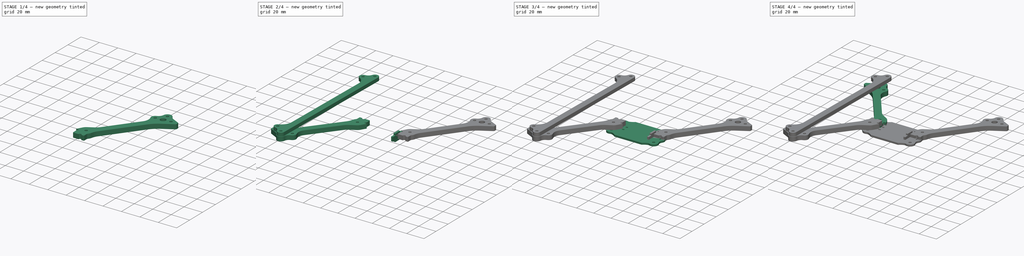
[diagram: build sequence overview — one tinted view per stage of 4, left to right]
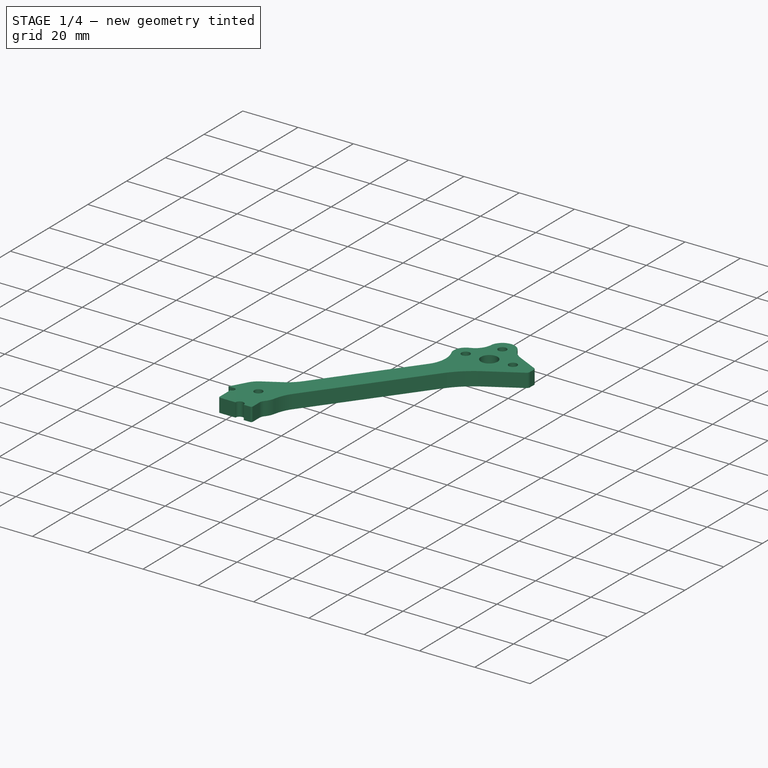
[diagram: stage 1 of 4 — iso view after this stage's code; geometry added in this stage tinted green]
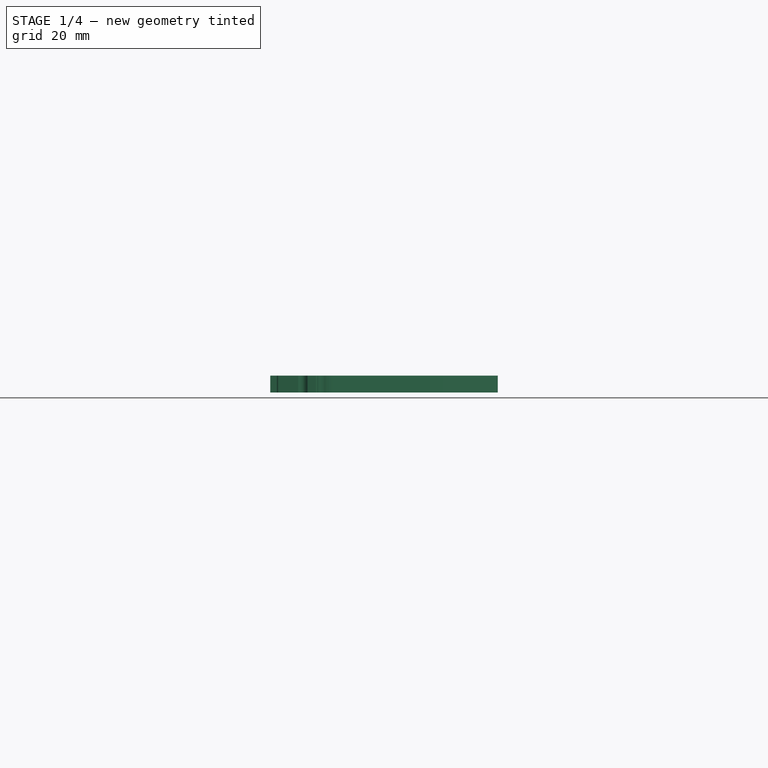
[diagram: stage 1 of 4 — front view after this stage's code; geometry added in this stage tinted green]
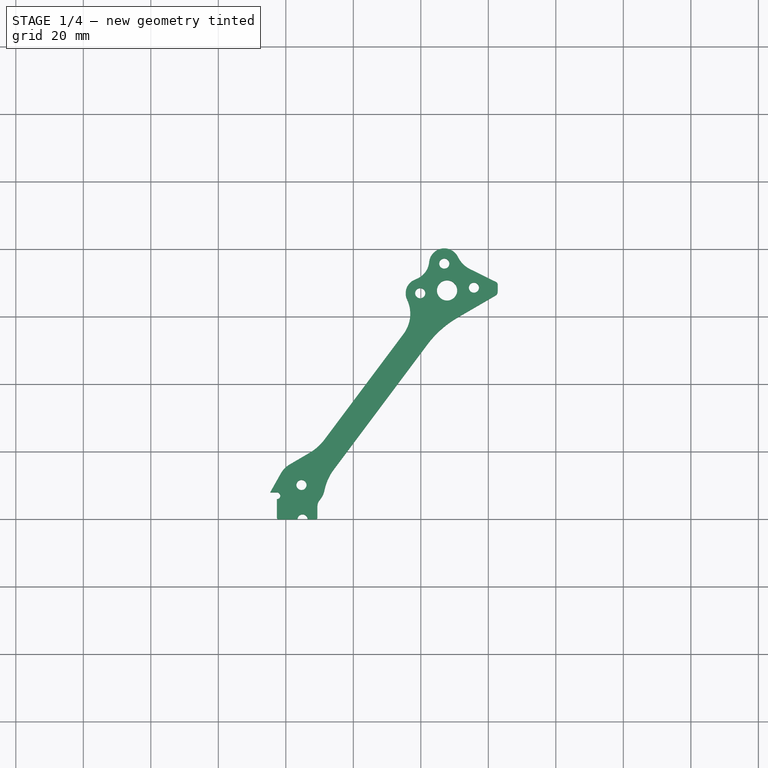
[diagram: stage 1 of 4 — top view after this stage's code; geometry added in this stage tinted green]
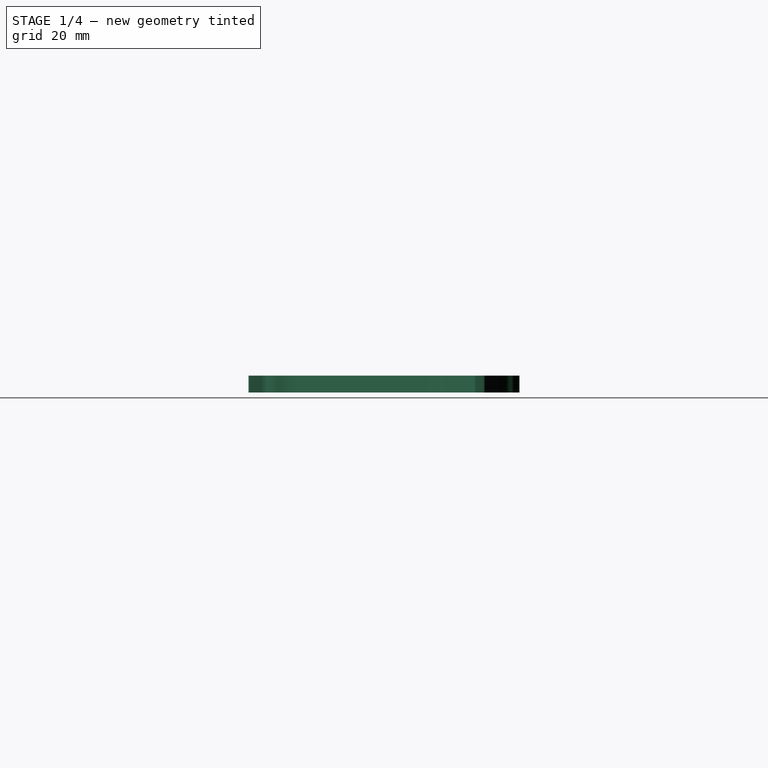
[diagram: stage 1 of 4 — right view after this stage's code; geometry added in this stage tinted green]
FCSTD DOCUMENT  (FreeCAD 0.20R29603 (Git))
Label: fin_racer_2020
License: All rights reserved
LicenseURL: http://en.wikipedia.org/wiki/All_rights_reserved
objects: Sketcher::SketchObject×8, PartDesign::Pad×8, PartDesign::Body×7, Part::Mirroring×4, Part::Part2DObjectPython×2, Spreadsheet::Sheet×1, PartDesign::Chamfer×1
note: 39 computed .brp shape members not serialized (recipe doc carries the construction recipe); baked Part::Feature solids carry a one-line shape summary decoded from their .brp

FEATURE [Sketcher::SketchObject] Sketch  label="arm"
  FullyConstrained = false
  Placement = pos=(-58.4751,-88.8667,4.99999) rot=(0,0,1;2.58185rad)
  expr: Constraints[102] = <<params>>.stands_spacing / 2 + 0.2
  expr: Constraints[130] = <<params>>.arm_width
  sketch-geometry (47):
    g0: Circle CenterX=19.5 CenterY=-15 CenterZ=0 NormalX=0 NormalY=0 NormalZ=1 AngleXU=0 Radius=3
    g1: Circle CenterX=14.6855 CenterY=-8.61092 CenterZ=0 NormalX=0 NormalY=0 NormalZ=1 AngleXU=0 Radius=1.5
    g2: Circle CenterX=13.1109 CenterY=-19.8145 CenterZ=0 NormalX=0 NormalY=0 NormalZ=1 AngleXU=0 Radius=1.5
    g3: Circle CenterX=25.8891 CenterY=-10.1855 CenterZ=0 NormalX=0 NormalY=0 NormalZ=1 AngleXU=0 Radius=1.5
    g4: ArcOfCircle CenterX=14.6855 CenterY=-8.61092 CenterZ=0 NormalX=0 NormalY=0 NormalZ=1 AngleXU=0 Radius=4.5 StartAngle=0.996679 EndAngle=3.58695
    g5: ArcOfCircle CenterX=5.20967 CenterY=-13.1341 CenterZ=0 NormalX=0 NormalY=0 NormalZ=1 AngleXU=0 Radius=6 StartAngle=5.67655 EndAngle=6.72854
    g6: ArcOfCircle CenterX=13.1109 CenterY=-19.8145 CenterZ=0 NormalX=0 NormalY=0 NormalZ=1 AngleXU=0 Radius=4.3 StartAngle=2.53496 EndAngle=4.12293
    g7: LineSegment StartX=9.57816 StartY=-17.3631 StartZ=0 EndX=10.1391 EndY=-16.5547 EndZ=0
    g8: ArcOfCircle CenterX=21.4742 CenterY=1.88499 CenterZ=0 NormalX=0 NormalY=0 NormalZ=1 AngleXU=0 Radius=8 StartAngle=4.13827 EndAngle=4.79781
    g9: LineSegment StartX=22.1567 StartY=-6.08585 StartZ=0 EndX=30.5921 EndY=-5.36353 EndZ=0
    g10: LineSegment StartX=31.5435 StartY=-5.85988 StartZ=0 EndX=32.5435 EndY=-7.59193 EndZ=0
    g11: LineSegment StartX=32.5572 StartY=-8.86753 StartZ=0 EndX=26.3013 EndY=-20.2633 EndZ=0
    g12: ArcOfCircle CenterX=30.6774 CenterY=-6.35988 CenterZ=0 NormalX=0 NormalY=0 NormalZ=1 AngleXU=0 Radius=1 StartAngle=0.523599 EndAngle=1.65622
    g13: ArcOfCircle CenterX=31.4176 CenterY=-8.24193 CenterZ=0 NormalX=0 NormalY=0 NormalZ=1 AngleXU=0 Radius=1.3 StartAngle=5.78114 EndAngle=6.80678
    g14: ArcOfCircle CenterX=5.16133 CenterY=-31.7012 CenterZ=0 NormalX=0 NormalY=0 NormalZ=1 AngleXU=0 Radius=10 StartAngle=6.18302 EndAngle=7.26452
    g15: ArcOfCircle CenterX=52.5992 CenterY=-34.7 CenterZ=0 NormalX=0 NormalY=0 NormalZ=1 AngleXU=0 Radius=30 StartAngle=2.63954 EndAngle=3.04143
    g16: LineSegment StartX=15.1112 StartY=-32.7012 StartZ=0 EndX=11.2062 EndY=-71.5555 EndZ=0
    g17: LineSegment StartX=22.7496 StartY=-31.7 StartZ=0 EndX=18.1161 EndY=-77.8032 EndZ=0
    g18: ArcOfCircle CenterX=-3.71861 CenterY=-70.0555 CenterZ=0 NormalX=0 NormalY=0 NormalZ=1 AngleXU=0 Radius=15 StartAngle=5.78438 EndAngle=6.18302
    g19: ArcOfCircle CenterX=33.0409 CenterY=-79.3032 CenterZ=0 NormalX=0 NormalY=0 NormalZ=1 AngleXU=0 Radius=15 StartAngle=3.04143 EndAngle=3.48156
    g20: ArcOfCircle CenterX=12.3 CenterY=-86.6391 CenterZ=0 NormalX=0 NormalY=0 NormalZ=1 AngleXU=0 Radius=7 StartAngle=2.64279 EndAngle=3.17146
    g21: ArcOfCircle CenterX=12.3 CenterY=-86.6391 CenterZ=0 NormalX=0 NormalY=0 NormalZ=1 AngleXU=0 Radius=7 StartAngle=6.12761 EndAngle=6.62314
    g22: ArcOfCircle CenterX=21.8828 CenterY=-88.1421 CenterZ=0 NormalX=0 NormalY=0 NormalZ=1 AngleXU=0 Radius=2.7 StartAngle=2.98602 EndAngle=3.68264
    g23: Circle CenterX=12.3 CenterY=-86.6391 CenterZ=0 NormalX=0 NormalY=0 NormalZ=1 AngleXU=0 Radius=1.5
    g24: LineSegment StartX=19.1306 StartY=-94.4345 StartZ=0 EndX=21.1878 EndY=-93.1984 EndZ=0
    g25: LineSegment StartX=19.5685 StartY=-89.5327 StartZ=0 EndX=21.3588 EndY=-92.5123 EndZ=0
    g26: ArcOfCircle CenterX=20.9303 CenterY=-92.7699 CenterZ=0 NormalX=0 NormalY=0 NormalZ=1 AngleXU=0 Radius=0.5 StartAngle=5.25344 EndAngle=6.82425
    g27: ArcOfCircle CenterX=17.8448 CenterY=-95.2071 CenterZ=0 NormalX=0 NormalY=0 NormalZ=1 AngleXU=0 Radius=1.5 StartAngle=0.541052 EndAngle=3.68264
    g28: LineSegment StartX=9.45371 StartY=-77.2312 StartZ=0 EndX=6.15292 EndY=-83.2905 EndZ=0
    g29: Circle CenterX=19.5 CenterY=-15 CenterZ=0 NormalX=0 NormalY=0 NormalZ=1 AngleXU=0 Radius=8
    g30: LineSegment StartX=13.1109 StartY=-19.8145 StartZ=0 EndX=24.3145 EndY=-21.3891 EndZ=0
    g31: LineSegment StartX=24.3145 StartY=-21.3891 StartZ=0 EndX=25.8891 EndY=-10.1855 EndZ=0
    g32: LineSegment StartX=25.8891 StartY=-10.1855 StartZ=0 EndX=14.6855 EndY=-8.61092 EndZ=0
    g33: LineSegment StartX=14.6855 StartY=-8.61092 StartZ=0 EndX=13.1109 EndY=-19.8145 EndZ=0
    g34: Circle CenterX=19.5 CenterY=-15 CenterZ=0 NormalX=0 NormalY=0 NormalZ=1 AngleXU=0 Radius=8
    g35: LineSegment StartX=19.5 StartY=-15 StartZ=0 EndX=19.5 EndY=0 EndZ=0
    g36: LineSegment StartX=19.5 StartY=-15 StartZ=0 EndX=25.8891 EndY=-10.1855 EndZ=0
    g37: Circle CenterX=19.5 CenterY=-15 CenterZ=0 NormalX=0 NormalY=0 NormalZ=1 AngleXU=0 Radius=63.5
    g38: LineSegment StartX=8.24013 StartY=-93.9784 StartZ=0 EndX=11.0728 EndY=-98.6928 EndZ=0
    g39: LineSegment StartX=11.7589 StartY=-98.8639 StartZ=0 EndX=16.5591 EndY=-95.9796 EndZ=0
    g40: ArcOfCircle CenterX=11.5014 CenterY=-98.4353 CenterZ=0 NormalX=0 NormalY=0 NormalZ=1 AngleXU=0 Radius=0.5 StartAngle=3.68264 EndAngle=5.25344
    g41: LineSegment StartX=17.8448 StartY=-95.2071 StartZ=0 EndX=9.68681 EndY=-81.6299 EndZ=0
    g42: LineSegment StartX=7.21005 StartY=-92.264 StartZ=0 EndX=5.49571 EndY=-93.2941 EndZ=0
    g43: LineSegment StartX=5.49571 StartY=-93.2941 StartZ=0 EndX=5.30312 EndY=-86.8481 EndZ=0
    g44: ArcOfCircle CenterX=7.72509 CenterY=-93.1212 CenterZ=0 NormalX=0 NormalY=0 NormalZ=1 AngleXU=0 Radius=1 StartAngle=5.25344 EndAngle=8.39503
    g45: LineSegment StartX=19.5 StartY=-15 StartZ=0 EndX=12.3 EndY=-86.6391 EndZ=0
    g46: LineSegment StartX=19.5 StartY=-15 StartZ=0 EndX=5.20967 EndY=-13.1341 EndZ=0
  constraints (138):
    c: Coincident(g5,g4)
    c: Coincident(g7,g6)
    c: Coincident(g7,g5)
    c: Coincident(g9,g8)
    c: Coincident(g12,g9)
    c: Coincident(g12,g10)
    c: Coincident(g13,g10)
    c: Coincident(g13,g11)
    c: Coincident(g15,g11)
    c: Coincident(g16,g14)
    c: Coincident(g17,g15)
    c: Coincident(g18,g16)
    c: Coincident(g19,g17)
    c: Coincident(g21,g19)
    c: Coincident(g22,g21)
    c: Coincident(g25,g22)
    c: Coincident(g26,g25)
    c: Coincident(g26,g24)
    c: Coincident(g28,g18)
    c: Coincident(g28,g20)
    c: Coincident(g29,g0)
    c: Radius(g0) = 3
    c: Radius(g3) = 1.5
    c: Radius(g29) = 8
    c: Coincident(g30,g31)
    c: Coincident(g31,g32)
    c: Coincident(g32,g33)
    c: Coincident(g33,g30)
    c: Equal(g30,g31)
    c: Equal(g30,g32)
    c: Equal(g30,g33)
    c: PointOnObject(g30,g34)
    c: PointOnObject(g31,g34)
    c: PointOnObject(g32,g34)
    c: PointOnObject(g33,g34)
    c: Coincident(g34,g0)
    c: PointOnObject(g33,g29)
    c: Coincident(g2,g30)
    c: Coincident(g1,g32)
    c: Coincident(g3,g31)
    c: Coincident(g35,g0)
    c: PointOnObject(g35,g-1)
    c: Vertical(g35)
    c: Coincident(g36,g0)
    c: Coincident(g36,g3)
    c: Tangent(g4,g5)
    c: Tangent(g8,g9)
    c: Tangent(g9,g12)
    c: Tangent(g12,g10)
    c: Tangent(g10,g13)
    c: Tangent(g11,g13)
    c: Radius(g23) = 1.5
    c: Tangent(g7,g5)
    c: Tangent(g7,g6)
    c: Tangent(g14,g16)
    c: Tangent(g17,g15)
    c: Tangent(g15,g11)
    c: Tangent(g16,g18)
    c: Tangent(g18,g28)
    c: Tangent(g28,g20)
    c: Tangent(g19,g17)
    c: Tangent(g19,g21)
    c: Tangent(g21,g22)
    c: Tangent(g22,g25)
    c: Tangent(g26,g25)
    c: Tangent(g26,g24)
    c: Radius(g27) = 1.5
    c: Parallel(g16,g17)
    c: Distance(g0,g23) = 72
    c: Radius(g6) = 4.3
    c: Radius(g4) = 4.5
    c: Radius(g15) = 30
    c: Radius(g13) = 1.3
    c: Radius(g12) = 1
    c: Radius(g8) = 8
    c: Radius(g14) = 10
    c: Radius(g18) = 15
    c: Radius(g19) = 15
    c: Radius(g20) = 7
    c: Radius(g21) = 7
    c: Coincident(g20,g23)
    c: Coincident(g21,g20)
    c: Equal(g2,g1)
    c: Equal(g1,g3)
    c: Coincident(g6,g2)
    c: Coincident(g4,g1)
    c: Angle(g36,g35) = 0.925025
    c: Coincident(g27,g24)
    c: Perpendicular(g27,g24)
    c: Distance(g27,g25) = 4.4
    c: DistanceX(g-1,g35) = 19.5
    c: Distance(g20,g-2) = 12.3
    c: Distance(g0,g11) = 8.6
    c: Distance(g0,g10) = 15
    c: Distance(g0,g8) = 17
    c: Distance(g10) = 2
    c: Tangent(g4,g8) = 1.5708
    c: Tangent(g14,g6) = 1.5708
    c: Coincident(g37,g0)
    c: Radius(g37) = 63.5
    c: Angle(g-1,g10) = 2.0944
    c: Distance(g11) = 13
    c: Distance(g20,g24) = 10.2
    c: Distance(g22,g38) = 12
    c: Parallel(g25,g38)
    c: Angle(g38,g-2) = 2.60054
    c: Coincident(g39,g27)
    c: Perpendicular(g39,g38)
    c: Tangent(g39,g40) = -1.5708
    c: Tangent(g38,g40) = -1.5708
    c: Radius(g40) = 0.5
    c: Equal(g40,g26)
    c: Coincident(g41,g27)
    c: Perpendicular(g24,g41)
    c: Distance(g20,g41) = 0.34
    c: Perpendicular(g27,g39)
    c: DistanceY(g0,g35) = 15
    c: Radius(g22) = 2.7
    c: Coincident(g43,g42)
    c: Tangent(g43,g20) = 1.5708
    c: Perpendicular(g38,g42)
    c: Distance(g42,g39) = 8
    c: Distance(g42) = 2
    c: Radius(g44) = 1
    c: Tangent(g44,g42) = -1.5708
    c: Perpendicular(g44,g38)
    c: Parallel(g24,g39)
    c: Coincident(g38,g44)
    c: Distance(g28) = 6.9
    c: Distance(g15,g-1) = 34.7
    c: Distance(g14,g17) = 7.5
    c: Coincident(g45,g0)
    c: Coincident(g45,g20)
    c: Parallel(g16,g45)
    c: Coincident(g46,g0)
    c: Coincident(g5,g46)
    c: Radius(g5) = 6
    c: Angle(g46,g45) = 1.60047
FEATURE [PartDesign::Pad] Pad  label="arm_pad"
  Direction = (0,0,1)
  Length = 5
  Length2 = 10
  Placement = pos=(-58.4751,-88.8667,4.99999) rot=(0,0,1;2.58185rad)
  Profile = -> Sketch
  ReferenceAxis = -> Sketch [N_Axis]
  Type = 0
  expr: Length = <<params>>.arm_thickness
FEATURE [PartDesign::Body] Body008  label="twiggle_v2_003"
  Group = -> [Sketch008,Pad008]
  Origin = -> Origin008
  Placement = pos=(-17.5,0,0) rot=(0,0,1;0rad)
  Tip = -> Pad008
FEATURE [Part::Part2DObjectPython] Shape2DView001  label="twiggle_v2_2DView001"  # Draft 2D object (typed FeaturePython)
  AutoUpdate = true
  Base = -> Body008
  Clip = false
  FuseArch = false
  HiddenLines = false
  InPlace = true
  OnlySolids = false
  Projection = (-1,2.98023e-08,-2.08616e-07)
  ProjectionMode = 0
  SegmentLength = 0.05
  Tessellation = false
  VisibleOnly = false
FEATURE [Spreadsheet::Sheet] Spreadsheet  label="params"
  cells = A1=drill bit; B1(drill_bit_dia)==2mm; A2=screw dia; B2(screw_dia)==3mm; A3=carbon insert dia; B3(carbon_insert_dia)=4.5; C3=4.5 for insert, 3 for lock nut; A4=stack mount; B4(stack_mount)==20mm; A5=stack screw dia; B5(stack_screw_dia)=3; A6=stands spacing; B6(stands_spacing)=20; A7=stands length; B7(stands_length)=49; A8=plate top width; B8(plate_top_width)=35; A9=plate bottom width; B9(plate_bottom_width)=28; A10=plato top width WIDE; B10(plate_top_width_WIDE)=39; A11=plate middle width WIDE; B11(plate_middle_width_WIDE)=39; A13=arm thickness; B13(arm_thickness)=5; A14=arm width; B14(arm_width)=7.5; C14=7.5 for 5mm, 7 for 6mm
FEATURE [Sketcher::SketchObject] Sketch010  label="brace"
  ExternalGeometry = -> [Pad]
  FullyConstrained = false
  MapMode = 5
  Placement = pos=(-58.4751,-88.8667,9.99999) rot=(0,0,1;2.58185rad)
  Support = -> [Pad]
  sketch-geometry (15):
    g0: LineSegment StartX=16.5591 StartY=-95.9796 StartZ=0 EndX=142.112 EndY=-20.5396 EndZ=0
    g1: ArcOfCircle CenterX=14.6855 CenterY=-8.61092 CenterZ=0 NormalX=0 NormalY=0 NormalZ=1 AngleXU=0 Radius=4 StartAngle=0.829906 EndAngle=3.68264
    g2: ArcOfCircle CenterX=25.8891 CenterY=-10.1855 CenterZ=0 NormalX=0 NormalY=0 NormalZ=1 AngleXU=0 Radius=4 StartAngle=5.66548 EndAngle=8.31562
    g3: ArcOfCircle CenterX=21.4349 CenterY=-1.23224 CenterZ=0 NormalX=0 NormalY=0 NormalZ=1 AngleXU=0 Radius=6 StartAngle=3.9715 EndAngle=5.17403
    g4: ArcOfCircle CenterX=38.9324 CenterY=-19.4522 CenterZ=0 NormalX=0 NormalY=0 NormalZ=1 AngleXU=0 Radius=12 StartAngle=2.52388 EndAngle=3.68264
    g5: ArcOfCircle CenterX=92.8215 CenterY=-138.651 CenterZ=0 NormalX=0 NormalY=0 NormalZ=1 AngleXU=0 Radius=4 StartAngle=3.68264 EndAngle=6.53538
    g6: ArcOfCircle CenterX=96.691 CenterY=-128.02 CenterZ=0 NormalX=0 NormalY=0 NormalZ=1 AngleXU=0 Radius=4 StartAngle=5.33286 EndAngle=7.983
    g7: ArcOfCircle CenterX=102.505 CenterY=-136.156 CenterZ=0 NormalX=0 NormalY=0 NormalZ=1 AngleXU=0 Radius=6 StartAngle=2.19126 EndAngle=3.39379
    g8: ArcOfCircle CenterX=94.6324 CenterY=-112.153 CenterZ=0 NormalX=0 NormalY=0 NormalZ=1 AngleXU=0 Radius=12 StartAngle=3.68264 EndAngle=4.84141
    g9: Circle CenterX=25.8891 CenterY=-10.1855 CenterZ=0 NormalX=0 NormalY=0 NormalZ=1 AngleXU=0 Radius=1.5
    g10: Circle CenterX=14.6855 CenterY=-8.61092 CenterZ=0 NormalX=0 NormalY=0 NormalZ=1 AngleXU=0 Radius=1.5
    g11: Circle CenterX=96.691 CenterY=-128.02 CenterZ=0 NormalX=0 NormalY=0 NormalZ=1 AngleXU=0 Radius=1.5
    g12: Circle CenterX=92.8215 CenterY=-138.651 CenterZ=0 NormalX=0 NormalY=0 NormalZ=1 AngleXU=0 Radius=1.5
    g13: LineSegment StartX=84.3464 StartY=-118.333 StartZ=0 EndX=28.6464 EndY=-25.6326 EndZ=0
    g14: LineSegment StartX=89.3928 StartY=-140.711 StartZ=0 EndX=11.2568 EndY=-10.6711 EndZ=0
  constraints (34):
    c: Coincident(g0,g-3)
    c: Parallel(g0,g-3)
    c: Coincident(g1,g-5)
    c: Coincident(g2,g-6)
    c: Radius(g1) = 4
    c: Equal(g1,g2)
    c: Radius(g3) = 6
    c: Radius(g4) = 12
    c: Tangent(g2,g4) = 1.5708
    c: Tangent(g2,g3) = 1.5708
    c: Tangent(g1,g3) = 1.5708
    c: Equal(g5,g6)
    c: Tangent(g6,g8) = 1.5708
    c: Tangent(g6,g7) = 1.5708
    c: Tangent(g5,g7) = 1.5708
    c: Coincident(g9,g2)
    c: Coincident(g10,g1)
    c: Equal(g10,g9)
    c: Radius(g9) = 1.5
    c: Equal(g12,g11)
    c: Coincident(g5,g12)
    c: Coincident(g11,g6)
    c: Symmetric(g5,g1,g0)
    c: Symmetric(g6,g2,g0)
    c: Equal(g11,g9)
    c: Equal(g7,g3)
    c: Tangent(g13,g4) = 1.5708
    c: Equal(g6,g2)
    c: Tangent(g13,g8) = 1.5708
    c: Equal(g8,g4)
    c: Parallel(g13,g14)
    c: Tangent(g14,g5) = 1.5708
    c: Tangent(g14,g1) = 1.5708
    c: Distance(g4,g14) = 7.2
FEATURE [Part::Mirroring] Part__Mirroring  label="arm_pad (Mirror #1)"
  Base = (0,0,0)
  Normal = (1,0,0)
  Placement = pos=(1.89994,-0.806981,-5) rot=(0,0,-1;0.017453rad)
  Source = -> Pad
FEATURE [Part::Mirroring] Part__Mirroring003  label="arm_pad (Mirror #4)"
  Base = (0,0,0)
  Normal = (0,1,0)
  Source = -> Part__Mirroring
FEATURE [Part::Part2DObjectPython] Shape2DView002  label="Brace_2DView002"  # Draft 2D object (typed FeaturePython)
  AutoUpdate = true
  Base = -> Sketch010
  Clip = false
  FuseArch = false
  HiddenLines = false
  InPlace = true
  OnlySolids = false
  Projection = (0,0,1)
  ProjectionMode = 0
  SegmentLength = 0.05
  Tessellation = false
  VisibleOnly = false
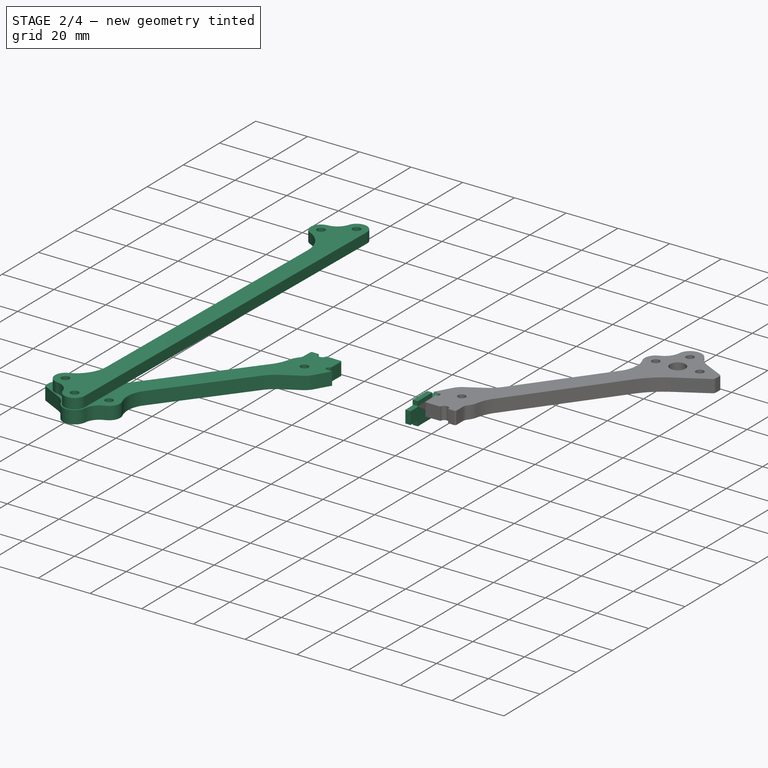
[diagram: stage 2 of 4 — iso view after this stage's code; geometry added in this stage tinted green]
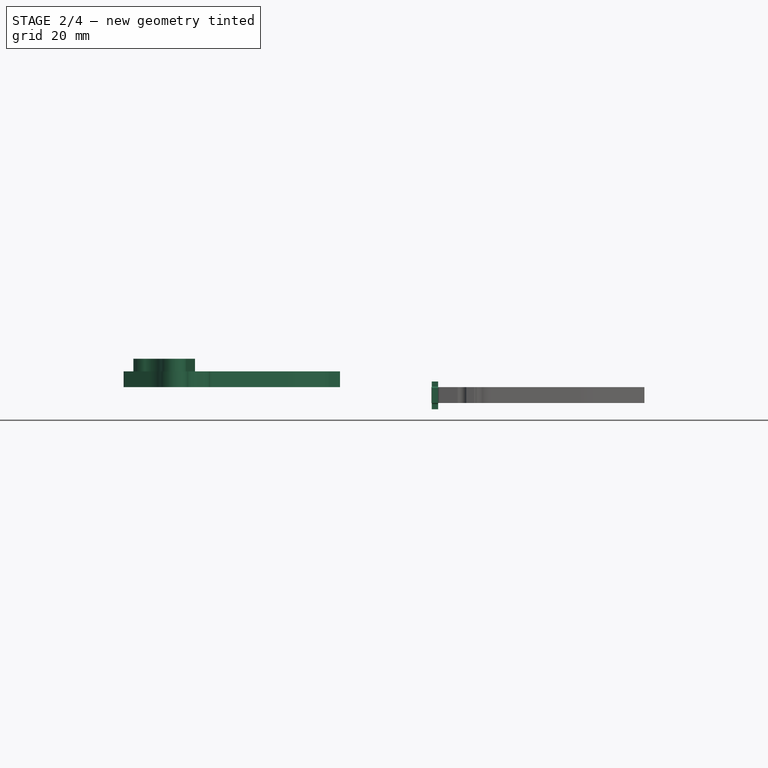
[diagram: stage 2 of 4 — front view after this stage's code; geometry added in this stage tinted green]
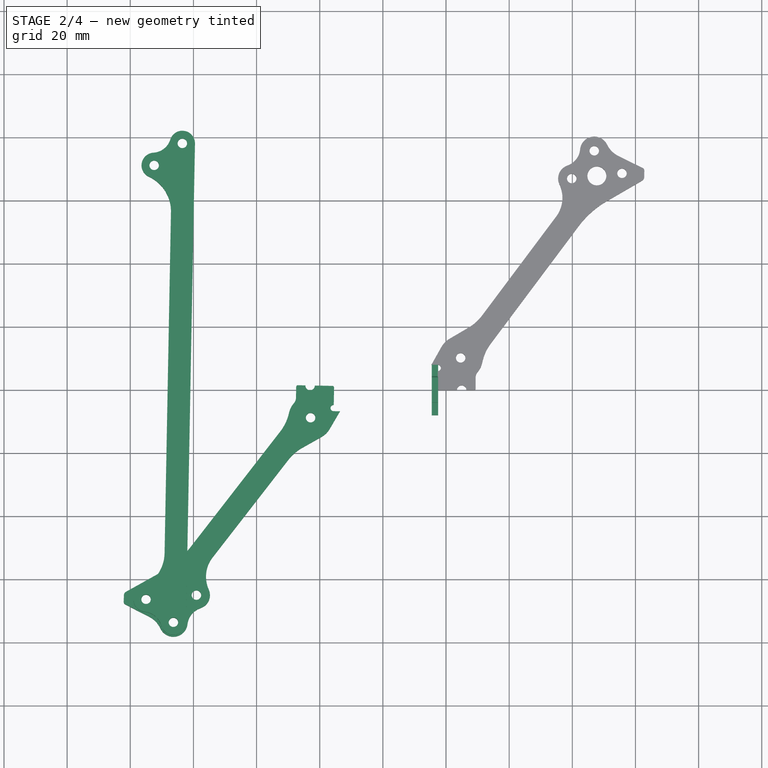
[diagram: stage 2 of 4 — top view after this stage's code; geometry added in this stage tinted green]
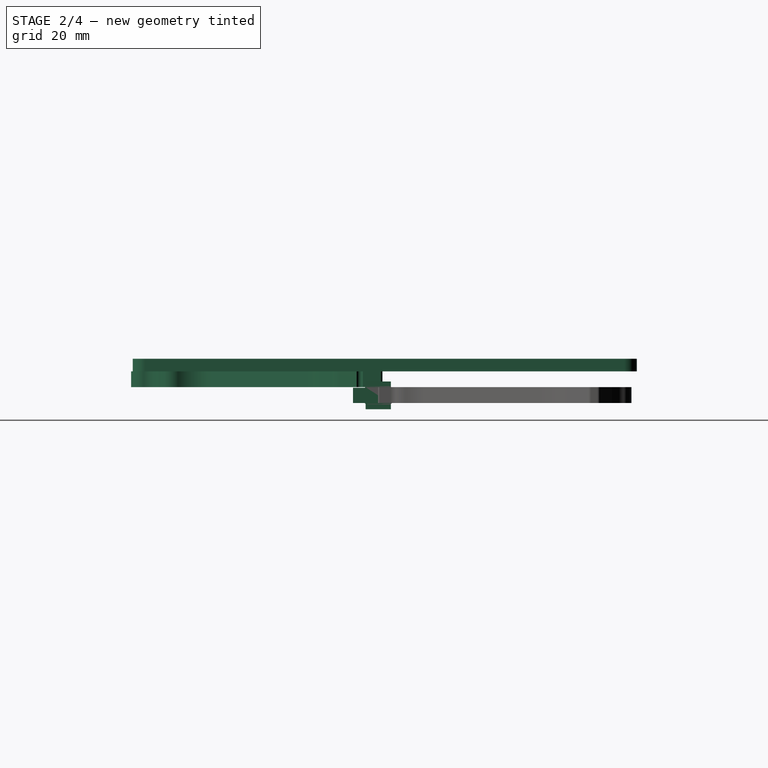
[diagram: stage 2 of 4 — right view after this stage's code; geometry added in this stage tinted green]
FEATURE [PartDesign::Body] Body004  label="top"
  Group = -> [Sketch004,Pad004]
  Origin = -> Origin004
  Placement = pos=(0,0,33) rot=(0,0,1;0rad)
  Tip = -> Pad004
FEATURE [Sketcher::SketchObject] Sketch008  label="twiggle_v2_005"
  FullyConstrained = true
  MapMode = 5
  Placement = pos=(0,0,0) rot=(0.57735,0.57735,0.57735;2.0944rad)
  Support = -> [YZ_Plane008]
  sketch-geometry (16):
    g0: LineSegment StartX=-8 StartY=4.8 StartZ=0 EndX=-8 EndY=0 EndZ=0
    g1: LineSegment StartX=-4 StartY=-2 StartZ=0 EndX=4 EndY=-2 EndZ=0
    g2: LineSegment StartX=8 StartY=-1e-16 StartZ=0 EndX=8 EndY=4.8 EndZ=0
    g3: LineSegment StartX=4 StartY=6.8 StartZ=0 EndX=-4 EndY=6.8 EndZ=0
    g4: LineSegment StartX=-4 StartY=6.8 StartZ=0 EndX=-4 EndY=5.3 EndZ=0
    g5: LineSegment StartX=-8 StartY=4.8 StartZ=0 EndX=-4.5 EndY=4.8 EndZ=0
    g6: LineSegment StartX=-8 StartY=-2e-16 StartZ=0 EndX=-4.5 EndY=-2e-16 EndZ=0
    g7: LineSegment StartX=-4 StartY=-0.5 StartZ=0 EndX=-4 EndY=-2 EndZ=0
    g8: LineSegment StartX=4 StartY=-2 StartZ=0 EndX=4 EndY=-0.5 EndZ=0
    g9: LineSegment StartX=4.5 StartY=-1e-16 StartZ=0 EndX=8 EndY=-1e-16 EndZ=0
    g10: LineSegment StartX=8 StartY=4.8 StartZ=0 EndX=4.5 EndY=4.8 EndZ=0
    g11: LineSegment StartX=4 StartY=5.3 StartZ=0 EndX=4 EndY=6.8 EndZ=0
    g12: ArcOfCircle CenterX=4.5 CenterY=-0.5 CenterZ=0 NormalX=0 NormalY=0 NormalZ=1 AngleXU=0 Radius=0.5 StartAngle=1.5708 EndAngle=3.14159
    g13: ArcOfCircle CenterX=-4.5 CenterY=-0.5 CenterZ=0 NormalX=0 NormalY=0 NormalZ=1 AngleXU=0 Radius=0.5 StartAngle=1e-16 EndAngle=1.5708
    g14: ArcOfCircle CenterX=-4.5 CenterY=5.3 CenterZ=0 NormalX=0 NormalY=0 NormalZ=1 AngleXU=0 Radius=0.5 StartAngle=4.71239 EndAngle=6.28319
    g15: ArcOfCircle CenterX=4.5 CenterY=5.3 CenterZ=0 NormalX=0 NormalY=0 NormalZ=1 AngleXU=0 Radius=0.5 StartAngle=3.14159 EndAngle=4.71239
  constraints (43):
    c: Horizontal(g1)
    c: Horizontal(g3)
    c: Vertical(g0)
    c: Vertical(g2)
    c: Vertical(g4)
    c: Horizontal(g5)
    c: Horizontal(g6)
    c: Vertical(g7)
    c: Vertical(g8)
    c: Horizontal(g9)
    c: Horizontal(g10)
    c: Vertical(g11)
    c: Equal(g9,g10)
    c: Distance(g-1,g1) = 2
    c: Coincident(g0,g5)
    c: Coincident(g3,g4)
    c: Coincident(g0,g6)
    c: Coincident(g1,g7)
    c: Coincident(g2,g9)
    c: Coincident(g1,g8)
    c: Coincident(g2,g10)
    c: Coincident(g3,g11)
    c: Distance(g2) = 4.8
    c: Distance(g1) = 8
    c: DistanceY(g1,g2) = 2
    c: Equal(g9,g6)
    c: Equal(g7,g4)
    c: Equal(g6,g5)
    c: Equal(g0,g2)
    c: DistanceX(g1,g2) = 4
    c: Symmetric(g8,g7,g-2)
    c: Tangent(g12,g8) = 1.5708
    c: Radius(g12) = 0.5
    c: Tangent(g13,g7) = 1.5708
    c: Tangent(g13,g6) = 1.5708
    c: Tangent(g14,g5) = -1.5708
    c: Vertical(g7,g4)
    c: Vertical(g11,g8)
    c: Tangent(g14,g4) = 1.5708
    c: Tangent(g15,g11) = 1.5708
    c: Tangent(g15,g10) = 1.5708
    c: Tangent(g12,g9) = 1.5708
    c: Equal(g13,g12)
FEATURE [PartDesign::Pad] Pad008  label="twiggle_v2_004"
  Direction = (1,-2e-16,3e-16)
  Length = 2
  Length2 = 10
  Placement = pos=(0,0,0) rot=(0.57735,0.57735,0.57735;2.0944rad)
  Profile = -> Sketch008
  ReferenceAxis = -> Sketch008 [N_Axis]
  Type = 0
FEATURE [PartDesign::Body] Body015  label="top_20x20_015"
  Group = -> [Sketch015,Pad015]
  Origin = -> Origin016
  Placement = pos=(0,0,33) rot=(0,0,1;0rad)
FEATURE [PartDesign::Pad] Pad018  label="arm_with_brace"
  BaseFeature = -> Pad
  Direction = (0,0,1)
  Length = 4
  Length2 = 10
  Placement = pos=(-58.4751,-88.8667,4.99999) rot=(0,0,1;2.58185rad)
  Profile = -> Sketch010
  ReferenceAxis = -> Sketch010 [N_Axis]
  Type = 0
FEATURE [PartDesign::Body] Body  label="arm001"
  Group = -> [Sketch,Pad,Sketch010,Pad018]
  Origin = -> Origin
  Placement = pos=(-2.02276,-0.887685,-4.99999) rot=(0,0,1;0.017453rad)
  Tip = -> Pad018
FEATURE [Part::Mirroring] Part__Mirroring002  label="twiggle_v2_003 (Mirror #3)"
  Base = (0,0,0)
  Normal = (1,0,0)
  Source = -> Body008
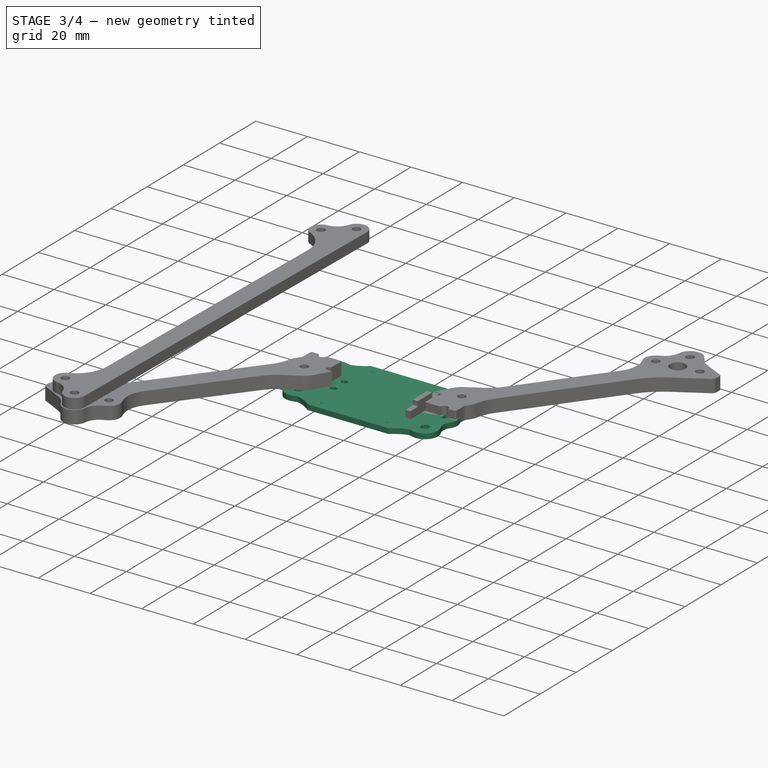
[diagram: stage 3 of 4 — iso view after this stage's code; geometry added in this stage tinted green]
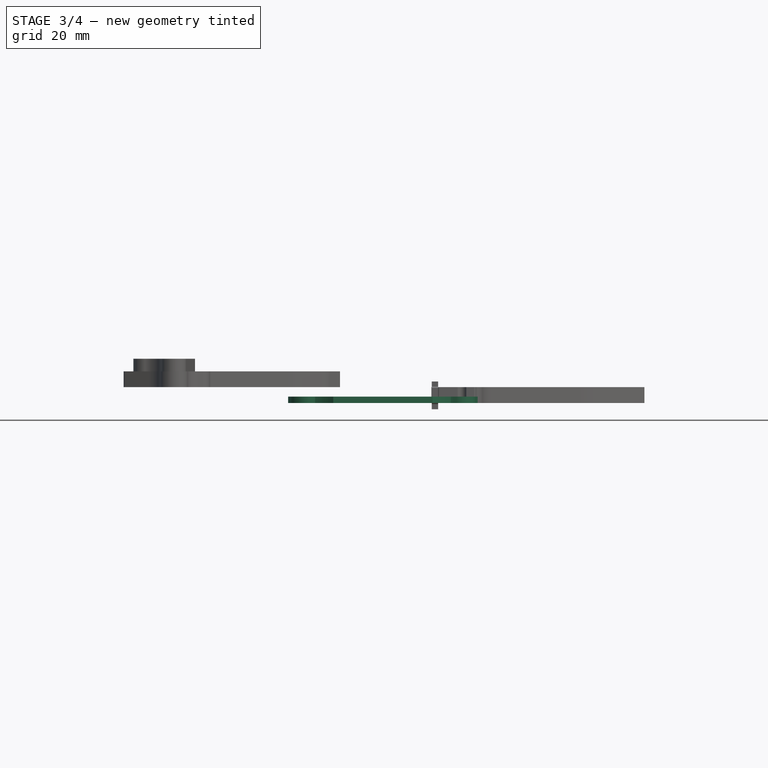
[diagram: stage 3 of 4 — front view after this stage's code; geometry added in this stage tinted green]
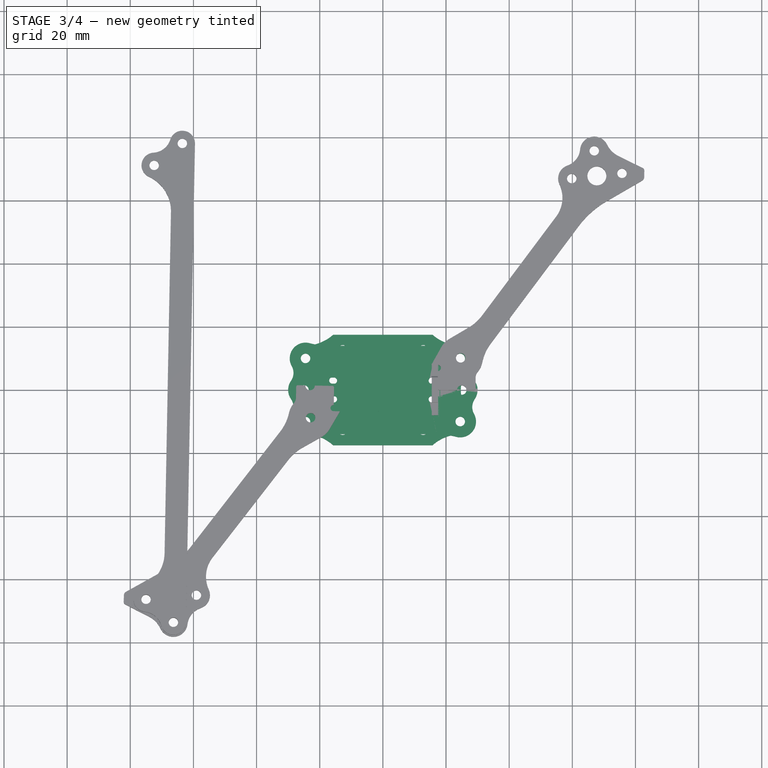
[diagram: stage 3 of 4 — top view after this stage's code; geometry added in this stage tinted green]
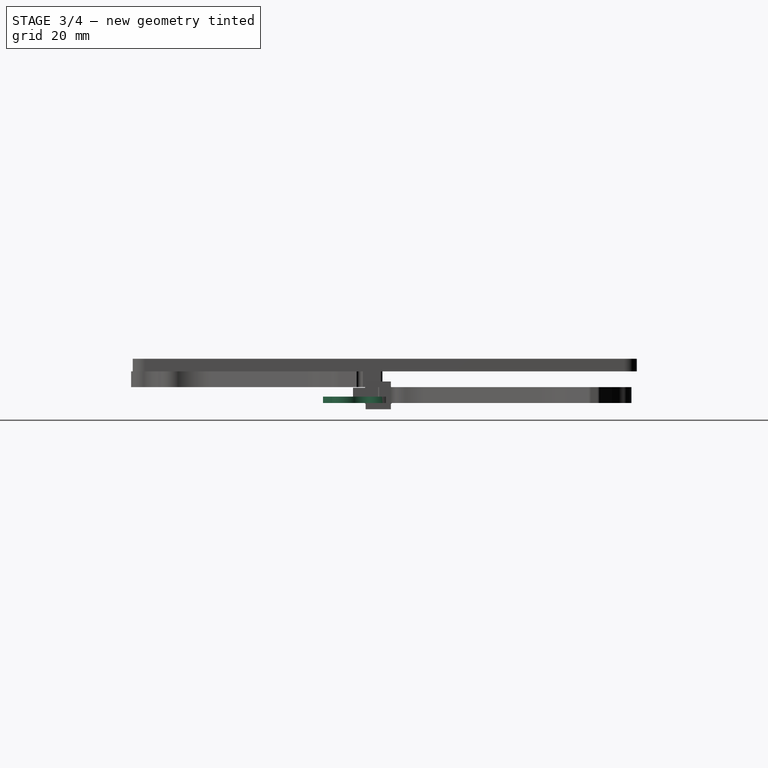
[diagram: stage 3 of 4 — right view after this stage's code; geometry added in this stage tinted green]
FEATURE [PartDesign::Body] Body002  label="middle001"
  Group = -> [Sketch002,Pad002]
  Origin = -> Origin002
  Placement = pos=(0,0,5) rot=(0,0,1;0rad)
  Tip = -> Pad002
FEATURE [Sketcher::SketchObject] Sketch003  label="bottom"
  FullyConstrained = true
  MapMode = 5
  expr: Constraints[101] = <<params>>.plate_bottom_width / 2
  expr: Constraints[13] = <<params>>.screw_dia / 2
  expr: Constraints[1] = <<params>>.stands_spacing / 2
  expr: Constraints[2] = <<params>>.stands_length / 2
  expr: Constraints[44] = <<params>>.screw_dia + 1.5mm
  expr: Constraints[45] = <<params>>.screw_dia + 2mm
  expr: Constraints[58] = <<params>>.drill_bit_dia / 2
  expr: Constraints[7] = <<params>>.screw_dia / 2
  expr: Constraints[97] = <<params>>.screw_dia + 2mm
  sketch-geometry (43):
    g0: Circle CenterX=-25 CenterY=0 CenterZ=0 NormalX=0 NormalY=0 NormalZ=1 AngleXU=0 Radius=1.5
    g1: Circle CenterX=-24.5 CenterY=-10 CenterZ=0 NormalX=0 NormalY=0 NormalZ=1 AngleXU=0 Radius=1.5
    g2: GeomPoint X=0 Y=0 Z=0
    g3: Circle CenterX=-24.5 CenterY=10 CenterZ=0 NormalX=0 NormalY=0 NormalZ=1 AngleXU=0 Radius=1.5
    g4: Circle CenterX=24.5 CenterY=-10 CenterZ=0 NormalX=0 NormalY=0 NormalZ=1 AngleXU=0 Radius=1.5
    g5: Circle CenterX=24.5 CenterY=10 CenterZ=0 NormalX=0 NormalY=0 NormalZ=1 AngleXU=0 Radius=1.5
    g6: Circle CenterX=25 CenterY=0 CenterZ=0 NormalX=0 NormalY=0 NormalZ=1 AngleXU=0 Radius=1.5
    g7: ArcOfCircle CenterX=-24.5 CenterY=-10 CenterZ=0 NormalX=0 NormalY=0 NormalZ=1 AngleXU=0 Radius=5 StartAngle=2.63652 EndAngle=4.97808
    g8: ArcOfCircle CenterX=-17.0167 CenterY=-37.5 CenterZ=0 NormalX=0 NormalY=0 NormalZ=1 AngleXU=0 Radius=23.5 StartAngle=1.5708 EndAngle=1.83648
    g9: ArcOfCircle CenterX=-25 CenterY=0 CenterZ=0 NormalX=0 NormalY=0 NormalZ=1 AngleXU=0 Radius=5 StartAngle=3.14159 EndAngle=3.74659
    g10: LineSegment StartX=-17.0167 StartY=-14 StartZ=0 EndX=0 EndY=-14 EndZ=0
    g11: ArcOfCircle CenterX=-24.5 CenterY=10 CenterZ=0 NormalX=0 NormalY=0 NormalZ=1 AngleXU=0 Radius=5 StartAngle=1.30511 EndAngle=3.64667
    g12: ArcOfCircle CenterX=-17.0167 CenterY=37.5 CenterZ=0 NormalX=0 NormalY=0 NormalZ=1 AngleXU=0 Radius=23.5 StartAngle=4.4467 EndAngle=4.71239
    g13: LineSegment StartX=-17.0167 StartY=14 StartZ=0 EndX=0 EndY=14 EndZ=0
    g14: LineSegment StartX=17.0167 StartY=-14 StartZ=0 EndX=0 EndY=-14 EndZ=0
    g15: ArcOfCircle CenterX=17.0167 CenterY=-37.5 CenterZ=0 NormalX=0 NormalY=0 NormalZ=1 AngleXU=0 Radius=23.5 StartAngle=1.30511 EndAngle=1.5708
    g16: ArcOfCircle CenterX=24.5 CenterY=-10 CenterZ=0 NormalX=0 NormalY=0 NormalZ=1 AngleXU=0 Radius=5 StartAngle=4.4467 EndAngle=6.78826
    g17: ArcOfCircle CenterX=24.5 CenterY=10 CenterZ=0 NormalX=0 NormalY=0 NormalZ=1 AngleXU=0 Radius=5 StartAngle=5.77811 EndAngle=8.11967
    g18: ArcOfCircle CenterX=17.0167 CenterY=37.5 CenterZ=0 NormalX=0 NormalY=0 NormalZ=1 AngleXU=0 Radius=23.5 StartAngle=4.71239 EndAngle=4.97808
    g19: LineSegment StartX=17.0167 StartY=14 StartZ=0 EndX=0 EndY=14 EndZ=0
    g20: ArcOfCircle CenterX=-32.8138 CenterY=-5.40319 CenterZ=0 NormalX=0 NormalY=0 NormalZ=1 AngleXU=0 Radius=4.5 StartAngle=5.77811 EndAngle=6.88818
    g21: ArcOfCircle CenterX=-32.8138 CenterY=5.40319 CenterZ=0 NormalX=0 NormalY=0 NormalZ=1 AngleXU=0 Radius=4.5 StartAngle=5.67819 EndAngle=6.78826
    g22: ArcOfCircle CenterX=-25 CenterY=-2.8e-15 CenterZ=0 NormalX=0 NormalY=0 NormalZ=1 AngleXU=0 Radius=5 StartAngle=2.5366 EndAngle=3.14159
    g23: ArcOfCircle CenterX=32.8138 CenterY=-5.40319 CenterZ=0 NormalX=0 NormalY=0 NormalZ=1 AngleXU=0 Radius=4.5 StartAngle=2.5366 EndAngle=3.64667
    g24: ArcOfCircle CenterX=25 CenterY=1.503e-13 CenterZ=0 NormalX=0 NormalY=0 NormalZ=1 AngleXU=0 Radius=5 StartAngle=5.67819 EndAngle=6.28319
    g25: ArcOfCircle CenterX=25 CenterY=-1.525e-13 CenterZ=0 NormalX=0 NormalY=0 NormalZ=1 AngleXU=0 Radius=5 StartAngle=3.05e-14 EndAngle=0.604994
    g26: ArcOfCircle CenterX=32.8138 CenterY=5.40319 CenterZ=0 NormalX=0 NormalY=0 NormalZ=1 AngleXU=0 Radius=4.5 StartAngle=2.63652 EndAngle=3.74659
    g27: LineSegment StartX=-15.5 StartY=-1.95 StartZ=0 EndX=-15.5 EndY=1.95 EndZ=0
    g28: LineSegment StartX=-17.5 StartY=1.95 StartZ=0 EndX=-17.5 EndY=-1.95 EndZ=0
    g29: ArcOfCircle CenterX=-17.5 CenterY=-2.95 CenterZ=0 NormalX=0 NormalY=0 NormalZ=1 AngleXU=0 Radius=1 StartAngle=1.5708 EndAngle=4.71239
    g30: ArcOfCircle CenterX=-15.5 CenterY=-2.95 CenterZ=0 NormalX=0 NormalY=0 NormalZ=1 AngleXU=0 Radius=1 StartAngle=4.71239 EndAngle=7.85398
    g31: LineSegment StartX=-17.5 StartY=-3.95 StartZ=0 EndX=-15.5 EndY=-3.95 EndZ=0
    g32: ArcOfCircle CenterX=-17.5 CenterY=2.95 CenterZ=0 NormalX=0 NormalY=0 NormalZ=1 AngleXU=0 Radius=1 StartAngle=1.5708 EndAngle=4.71239
    g33: ArcOfCircle CenterX=-15.5 CenterY=2.95 CenterZ=0 NormalX=0 NormalY=0 NormalZ=1 AngleXU=0 Radius=1 StartAngle=4.71239 EndAngle=7.85398
    g34: LineSegment StartX=-17.5 StartY=3.95 StartZ=0 EndX=-15.5 EndY=3.95 EndZ=0
    g35: LineSegment StartX=15.5 StartY=-1.95 StartZ=0 EndX=15.5 EndY=1.95 EndZ=0
    g36: LineSegment StartX=17.5 StartY=1.95 StartZ=0 EndX=17.5 EndY=-1.95 EndZ=0
    g37: ArcOfCircle CenterX=17.5 CenterY=-2.95 CenterZ=0 NormalX=0 NormalY=0 NormalZ=1 AngleXU=0 Radius=1 StartAngle=4.71239 EndAngle=7.85398
    g38: ArcOfCircle CenterX=15.5 CenterY=-2.95 CenterZ=0 NormalX=0 NormalY=0 NormalZ=1 AngleXU=0 Radius=1 StartAngle=1.5708 EndAngle=4.71239
    g39: LineSegment StartX=17.5 StartY=-3.95 StartZ=0 EndX=15.5 EndY=-3.95 EndZ=0
    g40: ArcOfCircle CenterX=17.5 CenterY=2.95 CenterZ=0 NormalX=0 NormalY=0 NormalZ=1 AngleXU=0 Radius=1 StartAngle=4.71239 EndAngle=7.85398
    g41: ArcOfCircle CenterX=15.5 CenterY=2.95 CenterZ=0 NormalX=0 NormalY=0 NormalZ=1 AngleXU=0 Radius=1 StartAngle=1.5708 EndAngle=4.71239
    g42: LineSegment StartX=17.5 StartY=3.95 StartZ=0 EndX=15.5 EndY=3.95 EndZ=0
  constraints (102):
    c: PointOnObject(g0,g-1)
    c: Distance(g1,g-1) = 10
    c: Distance(g1,g-2) = 24.5
    c: Coincident(g2,g-1)
    c: Equal(g5,g3)
    c: Equal(g3,g1)
    c: Equal(g1,g4)
    c: Radius(g1) = 1.5
    c: Symmetric(g3,g1,g-1)
    c: Symmetric(g1,g4,g-2)
    c: Symmetric(g5,g3,g-2)
    c: Equal(g0,g6)
    c: Symmetric(g6,g0,g-2)
    c: Radius(g0) = 1.5
    c: Coincident(g7,g1)
    c: Coincident(g9,g0)
    c: PointOnObject(g10,g-2)
    c: Horizontal(g10)
    c: Tangent(g10,g8) = 1.5708
    c: Tangent(g8,g7) = 1.5708
    c: Radius(g8) = 23.5
    c: Horizontal(g13)
    c: Tangent(g13,g12) = -1.5708
    c: Tangent(g12,g11) = 1.5708
    c: Symmetric(g11,g7,g-1)
    c: Symmetric(g13,g10,g-1)
    c: Tangent(g14,g15) = -1.5708
    c: Tangent(g15,g16) = 1.5708
    c: Tangent(g19,g18) = 1.5708
    c: Tangent(g18,g17) = 1.5708
    c: Coincident(g14,g10)
    c: Coincident(g19,g13)
    c: Symmetric(g8,g14,g-2)
    c: Symmetric(g7,g15,g-2)
    c: Symmetric(g7,g16,g-2)
    c: Symmetric(g17,g11,g-2)
    c: PointOnObject(g9,g-1)
    c: Tangent(g20,g7) = 1.5708
    c: Tangent(g20,g9) = 1.5708
    c: Tangent(g21,g22) = 1.5708
    c: Tangent(g11,g21) = 1.5708
    c: Coincident(g22,g9)
    c: Symmetric(g9,g21,g-1)
    c: Symmetric(g11,g7,g-1)
    c: Radius(g20) = 4.5
    c: Radius(g24) = 5
    c: Tangent(g23,g24) = 1.5708
    c: Tangent(g26,g25) = 1.5708
    c: Coincident(g25,g24)
    c: Coincident(g16,g23)
    c: Tangent(g17,g26) = 1.5708
    c: Symmetric(g17,g16,g-1)
    c: Symmetric(g25,g23,g-1)
    c: Symmetric(g23,g9,g-2)
    c: Symmetric(g9,g24,g-2)
    c: Tangent(g29,g31) = -1.5708
    c: Tangent(g31,g30) = -1.5708
    c: Horizontal(g31)
    c: Radius(g29) = 1
    c: Perpendicular(g27,g30) = 1.5708
    c: Perpendicular(g28,g29) = 4.71239
    c: Vertical(g30,g27)
    c: Vertical(g28)
    c: DistanceX(g31,g31) = 2
    c: Tangent(g32,g34) = 1.5708
    c: Tangent(g34,g33) = 1.5708
    c: Horizontal(g34)
    c: Coincident(g28,g32)
    c: Coincident(g27,g33)
    c: Symmetric(g32,g29,g-1)
    c: DistanceY(g30,g33) = 7.9
    c: Perpendicular(g33,g27)
    c: Equal(g29,g30)
    c: Equal(g30,g33)
    c: Equal(g33,g32)
    c: Tangent(g37,g39) = 1.5708
    c: Tangent(g39,g38) = 1.5708
    c: Horizontal(g39)
    c: Perpendicular(g35,g38) = 1.5708
    c: Perpendicular(g36,g37) = 4.71239
    c: Vertical(g36)
    c: Tangent(g40,g42) = -1.5708
    c: Tangent(g42,g41) = -1.5708
    c: Horizontal(g42)
    c: Coincident(g36,g40)
    c: Coincident(g35,g41)
    c: Perpendicular(g40,g36)
    c: Perpendicular(g41,g35)
    c: Equal(g40,g37)
    c: Equal(g37,g38)
    c: Equal(g38,g30)
    c: Symmetric(g35,g27,g-2)
    c: Symmetric(g36,g28,g-2)
    c: Equal(g36,g27)
    c: DistanceX(g0,g1) = 0.5
    c: Equal(g9,g22)
    c: Equal(g25,g24)
    c: Radius(g7) = 5
    c: Symmetric(g18,g14,g-1)
    c: Parallel(g36,g35)
    c: DistanceX(g0,g28) = 7.5
    c: DistanceY(g10,g2) = 14
FEATURE [PartDesign::Pad] Pad003  label="bottom001"
  Direction = (0,0,1)
  Length = 2
  Length2 = 10
  Profile = -> Sketch003
  ReferenceAxis = -> Sketch003 [N_Axis]
  Type = 0
FEATURE [PartDesign::Chamfer] Chamfer
  Angle = 45
  Base = -> Pad003 [Edge113,Edge110,Edge116,Edge122,Edge125,Edge119]
  BaseFeature = -> Pad003
  ChamferType = 0
  FlipDirection = false
  Size = 1.5
  Size2 = 1
  SupportTransform = false
  UseAllEdges = false
FEATURE [PartDesign::Body] Body003  label="bottom002"
  Group = -> [Sketch003,Pad003,Chamfer]
  Origin = -> Origin003
  Placement = pos=(0,0,-2) rot=(0,0,1;0rad)
  Tip = -> Chamfer
FEATURE [Sketcher::SketchObject] Sketch014  label="top_whoop_005"
  FullyConstrained = true
  MapMode = 5
  expr: Constraints[0] = <<params>>.stands_spacing / 2
  expr: Constraints[1] = <<params>>.stands_length / 2
  expr: Constraints[29] = <<params>>.plate_top_width
  expr: Constraints[3] = <<params>>.screw_dia / 2
  expr: Constraints[8] = <<params>>.screw_dia + 1mm
  sketch-geometry (62):
    g0: Circle CenterX=-24.5 CenterY=-10 CenterZ=0 NormalX=0 NormalY=0 NormalZ=1 AngleXU=0 Radius=1.5
    g1: GeomPoint X=0 Y=0 Z=0
    g2: Circle CenterX=-24.5 CenterY=10 CenterZ=0 NormalX=0 NormalY=0 NormalZ=1 AngleXU=0 Radius=1.5
    g3: Circle CenterX=24.5 CenterY=-10 CenterZ=0 NormalX=0 NormalY=0 NormalZ=1 AngleXU=0 Radius=1.5
    g4: Circle CenterX=24.5 CenterY=10 CenterZ=0 NormalX=0 NormalY=0 NormalZ=1 AngleXU=0 Radius=1.5
    g5: ArcOfCircle CenterX=-24.5 CenterY=-10 CenterZ=0 NormalX=0 NormalY=0 NormalZ=1 AngleXU=0 Radius=4 StartAngle=1.5708 EndAngle=4.68461
    g6: ArcOfCircle CenterX=-24.5 CenterY=10 CenterZ=0 NormalX=0 NormalY=0 NormalZ=1 AngleXU=0 Radius=4 StartAngle=1.59858 EndAngle=4.71239
    g7: LineSegment StartX=-20 StartY=-4.5 StartZ=0 EndX=-20 EndY=4.5 EndZ=0
    g8: ArcOfCircle CenterX=24.5 CenterY=10 CenterZ=0 NormalX=0 NormalY=0 NormalZ=1 AngleXU=0 Radius=4 StartAngle=5.55346 EndAngle=7.8262
    g9: ArcOfCircle CenterX=24.5 CenterY=-10 CenterZ=0 NormalX=0 NormalY=0 NormalZ=1 AngleXU=0 Radius=4 StartAngle=4.74017 EndAngle=7.01291
    g10: ArcOfCircle CenterX=-25 CenterY=-27.9931 CenterZ=0 NormalX=0 NormalY=0 NormalZ=1 AngleXU=0 Radius=14 StartAngle=0.847312 EndAngle=1.54301
    g11: ArcOfCircle CenterX=-25 CenterY=27.9931 CenterZ=0 NormalX=0 NormalY=0 NormalZ=1 AngleXU=0 Radius=14 StartAngle=4.74017 EndAngle=5.43587
    g12: ArcOfCircle CenterX=25 CenterY=27.9931 CenterZ=0 NormalX=0 NormalY=0 NormalZ=1 AngleXU=0 Radius=14 StartAngle=3.9889 EndAngle=4.68461
    g13: ArcOfCircle CenterX=25 CenterY=-27.9931 CenterZ=0 NormalX=0 NormalY=0 NormalZ=1 AngleXU=0 Radius=14 StartAngle=1.59858 EndAngle=2.29428
    g14: LineSegment StartX=-15.732 StartY=-17.5 StartZ=0 EndX=15.732 EndY=-17.5 EndZ=0
    g15: LineSegment StartX=-15.732 StartY=17.5 StartZ=0 EndX=15.732 EndY=17.5 EndZ=0
    g16: ArcOfCircle CenterX=35.6803 CenterY=3.7e-15 CenterZ=0 NormalX=0 NormalY=0 NormalZ=1 AngleXU=0 Radius=11 StartAngle=2.41186 EndAngle=3.87132
    g17: LineSegment StartX=-24.5 StartY=-6 StartZ=0 EndX=-21.5 EndY=-6 EndZ=0
    g18: LineSegment StartX=-24.5 StartY=6 StartZ=0 EndX=-21.5 EndY=6 EndZ=0
    g19: ArcOfCircle CenterX=-21.5 CenterY=4.5 CenterZ=0 NormalX=0 NormalY=0 NormalZ=1 AngleXU=0 Radius=1.5 StartAngle=1e-16 EndAngle=1.5708
    g20: ArcOfCircle CenterX=-21.5 CenterY=-4.5 CenterZ=0 NormalX=0 NormalY=0 NormalZ=1 AngleXU=0 Radius=1.5 StartAngle=4.71239 EndAngle=6.28319
    g21: ArcOfCircle CenterX=-16 CenterY=-3 CenterZ=0 NormalX=0 NormalY=0 NormalZ=1 AngleXU=0 Radius=1 StartAngle=1.5708 EndAngle=4.71239
    g22: ArcOfCircle CenterX=-11 CenterY=-3 CenterZ=0 NormalX=0 NormalY=0 NormalZ=1 AngleXU=0 Radius=1 StartAngle=4.71239 EndAngle=7.85398
    g23: LineSegment StartX=-16 StartY=-4 StartZ=0 EndX=-11 EndY=-4 EndZ=0
    g24: LineSegment StartX=-11 StartY=-2 StartZ=0 EndX=-16 EndY=-2 EndZ=0
    g25: ArcOfCircle CenterX=-16 CenterY=3 CenterZ=0 NormalX=0 NormalY=0 NormalZ=1 AngleXU=0 Radius=1 StartAngle=1.5708 EndAngle=4.71239
    g26: ArcOfCircle CenterX=-11 CenterY=3 CenterZ=0 NormalX=0 NormalY=0 NormalZ=1 AngleXU=0 Radius=1 StartAngle=4.71239 EndAngle=7.85398
    g27: LineSegment StartX=-16 StartY=4 StartZ=0 EndX=-11 EndY=4 EndZ=0
    g28: LineSegment StartX=-11 StartY=2 StartZ=0 EndX=-16 EndY=2 EndZ=0
    g29: LineSegment StartX=-0.277768 StartY=-3.96065 StartZ=0 EndX=17.0139 EndY=-8.96047 EndZ=0
    g30: LineSegment StartX=18.2007 StartY=-7.58316 StartZ=0 EndX=15.9091 EndY=-2.58333 EndZ=0
    g31: LineSegment StartX=2.6e-15 StartY=-2 StartZ=0 EndX=15 EndY=-2 EndZ=0
    g32: ArcOfCircle CenterX=17.2917 CenterY=-7.99983 CenterZ=0 NormalX=0 NormalY=0 NormalZ=1 AngleXU=0 Radius=1 StartAngle=4.43092 EndAngle=6.71296
    g33: ArcOfCircle CenterX=2.5e-15 CenterY=-3 CenterZ=0 NormalX=0 NormalY=0 NormalZ=1 AngleXU=0 Radius=1 StartAngle=1.5708 EndAngle=4.43092
    g34: ArcOfCircle CenterX=15 CenterY=-3 CenterZ=0 NormalX=0 NormalY=0 NormalZ=1 AngleXU=0 Radius=1 StartAngle=0.429775 EndAngle=1.5708
    g35: LineSegment StartX=-0.277768 StartY=3.96065 StartZ=0 EndX=17.0139 EndY=8.96047 EndZ=0
    g36: LineSegment StartX=18.2007 StartY=7.58316 StartZ=0 EndX=15.9091 EndY=2.58333 EndZ=0
    g37: LineSegment StartX=2.3e-15 StartY=2 StartZ=0 EndX=15 EndY=2 EndZ=0
    g38: ArcOfCircle CenterX=17.2917 CenterY=7.99983 CenterZ=0 NormalX=0 NormalY=0 NormalZ=1 AngleXU=0 Radius=1 StartAngle=5.85341 EndAngle=8.13545
    g39: ArcOfCircle CenterX=2.5e-15 CenterY=3 CenterZ=0 NormalX=0 NormalY=0 NormalZ=1 AngleXU=0 Radius=1 StartAngle=1.85227 EndAngle=4.71239
    g40: ArcOfCircle CenterX=15 CenterY=3 CenterZ=0 NormalX=0 NormalY=0 NormalZ=1 AngleXU=0 Radius=1 StartAngle=4.71239 EndAngle=5.85341
    g41: LineSegment StartX=-6.17828 StartY=-5.87971 StartZ=0 EndX=-9.42828 EndY=-8.87971 EndZ=0
    g42: ArcOfCircle CenterX=-8.75 CenterY=-9.61451 CenterZ=0 NormalX=0 NormalY=0 NormalZ=1 AngleXU=0 Radius=1 StartAngle=2.31622 EndAngle=4.71239
    g43: LineSegment StartX=-8.75 StartY=-10.6145 StartZ=0 EndX=4.87536 EndY=-10.6145 EndZ=0
    g44: ArcOfCircle CenterX=4.87536 CenterY=-9.61451 CenterZ=0 NormalX=0 NormalY=0 NormalZ=1 AngleXU=0 Radius=1 StartAngle=4.71239 EndAngle=7.57251
    g45: LineSegment StartX=5.15313 StartY=-8.65386 StartZ=0 EndX=-5.22223 EndY=-5.65386 EndZ=0
    g46: ArcOfCircle CenterX=-5.5 CenterY=-6.61451 CenterZ=0 NormalX=0 NormalY=0 NormalZ=1 AngleXU=0 Radius=1 StartAngle=1.28933 EndAngle=2.31622
    g47: LineSegment StartX=-6.17828 StartY=5.87971 StartZ=0 EndX=-9.42828 EndY=8.87971 EndZ=0
    g48: ArcOfCircle CenterX=-8.75 CenterY=9.61451 CenterZ=0 NormalX=0 NormalY=0 NormalZ=1 AngleXU=0 Radius=1 StartAngle=1.5708 EndAngle=3.96697
    g49: LineSegment StartX=-8.75 StartY=10.6145 StartZ=0 EndX=4.87536 EndY=10.6145 EndZ=0
    g50: ArcOfCircle CenterX=4.87536 CenterY=9.61451 CenterZ=0 NormalX=0 NormalY=0 NormalZ=1 AngleXU=0 Radius=1 StartAngle=4.99386 EndAngle=7.85398
    g51: LineSegment StartX=5.15313 StartY=8.65386 StartZ=0 EndX=-5.22223 EndY=5.65386 EndZ=0
    g52: ArcOfCircle CenterX=-5.5 CenterY=6.61451 CenterZ=0 NormalX=0 NormalY=0 NormalZ=1 AngleXU=0 Radius=1 StartAngle=3.96697 EndAngle=4.99386
    g53: LineSegment StartX=-12.75 StartY=12.75 StartZ=0 EndX=-12.75 EndY=-12.75 EndZ=0
    g54: LineSegment StartX=-12.75 StartY=-12.75 StartZ=0 EndX=12.75 EndY=-12.75 EndZ=0
    g55: LineSegment StartX=12.75 StartY=-12.75 StartZ=0 EndX=12.75 EndY=12.75 EndZ=0
    g56: LineSegment StartX=12.75 StartY=12.75 StartZ=0 EndX=-12.75 EndY=12.75 EndZ=0
    g57: GeomPoint X=0 Y=0 Z=0
    g58: Circle CenterX=12.75 CenterY=-12.75 CenterZ=0 NormalX=0 NormalY=0 NormalZ=1 AngleXU=0 Radius=1.5
    g59: Circle CenterX=-12.75 CenterY=-12.75 CenterZ=0 NormalX=0 NormalY=0 NormalZ=1 AngleXU=0 Radius=1.5
    g60: Circle CenterX=-12.75 CenterY=12.75 CenterZ=0 NormalX=0 NormalY=0 NormalZ=1 AngleXU=0 Radius=1.5
    g61: Circle CenterX=12.75 CenterY=12.75 CenterZ=0 NormalX=0 NormalY=0 NormalZ=1 AngleXU=0 Radius=1.5
  constraints (141):
    c: Distance(g0,g-1) = 10
    c: Distance(g0,g-2) = 24.5
    c: Coincident(g1,g-1)
    c: Radius(g0) = 1.5
    c: Symmetric(g2,g0,g-1)
    c: Symmetric(g0,g3,g-2)
    c: Symmetric(g4,g2,g-2)
    c: Coincident(g5,g0)
    c: Radius(g5) = 4
    c: Symmetric(g6,g5,g-1)
    c: Vertical(g7)
    c: Symmetric(g9,g5,g-2)
    c: Coincident(g8,g4)
    c: Coincident(g9,g3)
    c: Equal(g2,g4)
    c: Equal(g4,g3)
    c: Equal(g3,g0)
    c: Tangent(g11,g6) = 1.5708
    c: Tangent(g10,g5) = 1.5708
    c: Symmetric(g10,g11,g-1)
    c: Radius(g10) = 14
    c: Symmetric(g12,g11,g-2)
    c: Equal(g10,g11)
    c: Equal(g11,g12)
    c: Coincident(g14,g10)
    c: Coincident(g14,g13)
    c: Coincident(g15,g11)
    c: Coincident(g15,g12)
    c: Horizontal(g15)
    c: DistanceY(g10,g11) = 35
    c: Tangent(g12,g8) = 1.5708
    c: Tangent(g13,g9) = 1.5708
    c: Tangent(g16,g8) = 1.5708
    c: Tangent(g16,g9) = 1.5708
    c: Radius(g16) = 11
    c: Coincident(g6,g2)
    c: Symmetric(g13,g10,g-2)
    c: Horizontal(g17)
    c: Vertical(g18,g17)
    c: Tangent(g17,g5) = 1.5708
    c: Tangent(g18,g6) = -1.5708
    c: Tangent(g20,g17) = -1.5708
    c: Tangent(g19,g18) = 1.5708
    c: Tangent(g19,g7) = -1.5708
    c: Tangent(g20,g7) = -1.5708
    c: Radius(g20) = 1.5
    c: Tangent(g21,g23) = -1.5708
    c: Tangent(g23,g22) = -1.5708
    c: Tangent(g22,g24) = -1.5708
    c: Tangent(g24,g21) = -1.5708
    c: Equal(g21,g22)
    c: Horizontal(g23)
    c: Radius(g22) = 1
    c: Distance(g21,g22) = 5
    c: Distance(g22,g-1) = 3
    c: Distance(g21,g7) = 4
    c: Tangent(g25,g27) = 1.5708
    c: Tangent(g27,g26) = 1.5708
    c: Tangent(g26,g28) = 1.5708
    c: Tangent(g28,g25) = 1.5708
    c: Equal(g25,g26)
    c: Horizontal(g27)
    c: Equal(g28,g24)
    c: Equal(g26,g22)
    c: Symmetric(g22,g26,g-1)
    c: Horizontal(g31)
    c: Equal(g34,g33)
    c: Equal(g33,g32)
    c: Radius(g34) = 1
    c: Horizontal(g33,g22)
    c: Tangent(g29,g33) = -1.5708
    c: Tangent(g31,g33) = 1.5708
    c: Tangent(g30,g34) = -1.5708
    c: Tangent(g31,g34) = 1.5708
    c: Tangent(g30,g32) = -1.5708
    c: Tangent(g29,g32) = -1.5708
    c: Horizontal(g37)
    c: Equal(g39,g38)
    c: Tangent(g35,g39) = 1.5708
    c: Tangent(g37,g39) = -1.5708
    c: Tangent(g36,g40) = 1.5708
    c: Tangent(g37,g40) = -1.5708
    c: Tangent(g36,g38) = 1.5708
    c: Tangent(g35,g38) = 1.5708
    c: Symmetric(g32,g38,g-1)
    c: Symmetric(g40,g34,g-1)
    c: Symmetric(g33,g39,g-1)
    c: Distance(g32,g34) = 5.5
    c: Distance(g32,g33) = 18
    c: Distance(g33,g34) = 15
    c: DistanceX(g22,g33) = 11
    c: Tangent(g41,g42) = -1.5708
    c: Horizontal(g43)
    c: Tangent(g43,g44) = -1.5708
    c: Tangent(g45,g46) = -1.5708
    c: Equal(g42,g46)
    c: Equal(g46,g44)
    c: Radius(g44) = 1
    c: Parallel(g45,g29)
    c: Tangent(g42,g43) = -1.5708
    c: Tangent(g46,g41) = -1.5708
    c: Tangent(g44,g45) = -1.5708
    c: Tangent(g47,g48) = 1.5708
    c: Horizontal(g49)
    c: Tangent(g49,g50) = 1.5708
    c: Tangent(g51,g52) = 1.5708
    c: Equal(g52,g50)
    c: Tangent(g48,g49) = 1.5708
    c: Tangent(g52,g47) = 1.5708
    c: Tangent(g50,g51) = 1.5708
    c: Symmetric(g44,g50,g-1)
    c: Symmetric(g52,g46,g-1)
    c: Symmetric(g48,g42,g-1)
    c: Equal(g34,g40)
    c: Equal(g46,g52)
    c: DistanceX(g10,g0) = 0.5
    c: DistanceX(g0,g7) = 4.5
    c: Coincident(g53,g54)
    c: Coincident(g54,g55)
    c: Coincident(g55,g56)
    c: Coincident(g56,g53)
    c: Horizontal(g54)
    c: Horizontal(g56)
    c: Vertical(g53)
    c: Vertical(g55)
    c: Symmetric(g54,g53,g57)
    c: Coincident(g57,g1)
    c: Equal(g54,g55)
    c: DistanceY(g55,g55) = 25.5
    c: Coincident(g58,g54)
    c: Coincident(g59,g53)
    c: Coincident(g60,g53)
    c: Coincident(g61,g55)
    c: Equal(g61,g60)
    c: Equal(g60,g59)
    c: Equal(g59,g58)
    c: Radius(g59) = 1.5
    c: DistanceX(g59,g42) = 4
    c: Distance(g44,g29) = 3
    c: DistanceX(g46,g33) = 5.5
    c: Distance(g46,g43) = 4
FEATURE [PartDesign::Pad] Pad014  label="top_whoop_014"
  Direction = (0,0,1)
  Length = 2
  Length2 = 10
  Profile = -> Sketch014
  ReferenceAxis = -> Sketch014 [N_Axis]
  Type = 0
FEATURE [PartDesign::Body] Body014  label="top_whoop_004"
  Group = -> [Sketch014,Pad014]
  Origin = -> Origin015
  Placement = pos=(0,0,33) rot=(0,0,1;0rad)
FEATURE [Sketcher::SketchObject] Sketch015  label="top_20x20_017"
  FullyConstrained = true
  MapMode = 5
  expr: Constraints[0] = <<params>>.stands_spacing / 2
  expr: Constraints[1] = <<params>>.stands_length / 2
  expr: Constraints[29] = <<params>>.plate_top_width
  expr: Constraints[3] = <<params>>.screw_dia / 2
  expr: Constraints[8] = <<params>>.screw_dia + 1mm
  sketch-geometry (86):
    g0: Circle CenterX=-24.5 CenterY=-10 CenterZ=0 NormalX=0 NormalY=0 NormalZ=1 AngleXU=0 Radius=1.5
    g1: GeomPoint X=0 Y=0 Z=0
    g2: Circle CenterX=-24.5 CenterY=10 CenterZ=0 NormalX=0 NormalY=0 NormalZ=1 AngleXU=0 Radius=1.5
    g3: Circle CenterX=24.5 CenterY=-10 CenterZ=0 NormalX=0 NormalY=0 NormalZ=1 AngleXU=0 Radius=1.5
    g4: Circle CenterX=24.5 CenterY=10 CenterZ=0 NormalX=0 NormalY=0 NormalZ=1 AngleXU=0 Radius=1.5
    g5: ArcOfCircle CenterX=-24.5 CenterY=-10 CenterZ=0 NormalX=0 NormalY=0 NormalZ=1 AngleXU=0 Radius=4 StartAngle=1.5708 EndAngle=4.68461
    g6: ArcOfCircle CenterX=-24.5 CenterY=10 CenterZ=0 NormalX=0 NormalY=0 NormalZ=1 AngleXU=0 Radius=4 StartAngle=1.59858 EndAngle=4.71239
    g7: LineSegment StartX=-20 StartY=-4.5 StartZ=0 EndX=-20 EndY=4.5 EndZ=0
    g8: ArcOfCircle CenterX=24.5 CenterY=10 CenterZ=0 NormalX=0 NormalY=0 NormalZ=1 AngleXU=0 Radius=4 StartAngle=5.55346 EndAngle=7.8262
    g9: ArcOfCircle CenterX=24.5 CenterY=-10 CenterZ=0 NormalX=0 NormalY=0 NormalZ=1 AngleXU=0 Radius=4 StartAngle=4.74017 EndAngle=7.01291
    g10: ArcOfCircle CenterX=-25 CenterY=-27.9931 CenterZ=0 NormalX=0 NormalY=0 NormalZ=1 AngleXU=0 Radius=14 StartAngle=0.847312 EndAngle=1.54301
    g11: ArcOfCircle CenterX=-25 CenterY=27.9931 CenterZ=0 NormalX=0 NormalY=0 NormalZ=1 AngleXU=0 Radius=14 StartAngle=4.74017 EndAngle=5.43587
    g12: ArcOfCircle CenterX=25 CenterY=27.9931 CenterZ=0 NormalX=0 NormalY=0 NormalZ=1 AngleXU=0 Radius=14 StartAngle=3.9889 EndAngle=4.68461
    g13: ArcOfCircle CenterX=25 CenterY=-27.9931 CenterZ=0 NormalX=0 NormalY=0 NormalZ=1 AngleXU=0 Radius=14 StartAngle=1.59858 EndAngle=2.29428
    g14: LineSegment StartX=-15.732 StartY=-17.5 StartZ=0 EndX=15.732 EndY=-17.5 EndZ=0
    g15: LineSegment StartX=-15.732 StartY=17.5 StartZ=0 EndX=15.732 EndY=17.5 EndZ=0
    g16: ArcOfCircle CenterX=35.6803 CenterY=1e-16 CenterZ=0 NormalX=0 NormalY=0 NormalZ=1 AngleXU=0 Radius=11 StartAngle=2.41186 EndAngle=3.87132
    g17: LineSegment StartX=-24.5 StartY=-6 StartZ=0 EndX=-21.5 EndY=-6 EndZ=0
    g18: LineSegment StartX=-24.5 StartY=6 StartZ=0 EndX=-21.5 EndY=6 EndZ=0
    g19: ArcOfCircle CenterX=-21.5 CenterY=4.5 CenterZ=0 NormalX=0 NormalY=0 NormalZ=1 AngleXU=0 Radius=1.5 StartAngle=2e-16 EndAngle=1.5708
    g20: ArcOfCircle CenterX=-21.5 CenterY=-4.5 CenterZ=0 NormalX=0 NormalY=0 NormalZ=1 AngleXU=0 Radius=1.5 StartAngle=4.71239 EndAngle=6.28319
    g21: ArcOfCircle CenterX=-16 CenterY=-3 CenterZ=0 NormalX=0 NormalY=0 NormalZ=1 AngleXU=0 Radius=1 StartAngle=1.5708 EndAngle=4.71239
    g22: ArcOfCircle CenterX=-11 CenterY=-3 CenterZ=0 NormalX=0 NormalY=0 NormalZ=1 AngleXU=0 Radius=1 StartAngle=4.71239 EndAngle=7.85398
    g23: LineSegment StartX=-16 StartY=-4 StartZ=0 EndX=-11 EndY=-4 EndZ=0
    g24: LineSegment StartX=-11 StartY=-2 StartZ=0 EndX=-16 EndY=-2 EndZ=0
    g25: ArcOfCircle CenterX=-16 CenterY=3 CenterZ=0 NormalX=0 NormalY=0 NormalZ=1 AngleXU=0 Radius=1 StartAngle=1.5708 EndAngle=4.71239
    g26: ArcOfCircle CenterX=-11 CenterY=3 CenterZ=0 NormalX=0 NormalY=0 NormalZ=1 AngleXU=0 Radius=1 StartAngle=4.71239 EndAngle=7.85398
    g27: LineSegment StartX=-16 StartY=4 StartZ=0 EndX=-11 EndY=4 EndZ=0
    g28: LineSegment StartX=-11 StartY=2 StartZ=0 EndX=-16 EndY=2 EndZ=0
    g29: LineSegment StartX=1.72223 StartY=-3.96065 StartZ=0 EndX=19.0139 EndY=-8.96047 EndZ=0
    g30: LineSegment StartX=20.2007 StartY=-7.58316 StartZ=0 EndX=17.9091 EndY=-2.58333 EndZ=0
    g31: LineSegment StartX=2 StartY=-2 StartZ=0 EndX=17 EndY=-2 EndZ=0
    g32: ArcOfCircle CenterX=19.2917 CenterY=-7.99983 CenterZ=0 NormalX=0 NormalY=0 NormalZ=1 AngleXU=0 Radius=1 StartAngle=4.43092 EndAngle=6.71296
    g33: ArcOfCircle CenterX=2 CenterY=-3 CenterZ=0 NormalX=0 NormalY=0 NormalZ=1 AngleXU=0 Radius=1 StartAngle=1.5708 EndAngle=4.43092
    g34: ArcOfCircle CenterX=17 CenterY=-3 CenterZ=0 NormalX=0 NormalY=0 NormalZ=1 AngleXU=0 Radius=1 StartAngle=0.429775 EndAngle=1.5708
    g35: LineSegment StartX=1.72223 StartY=3.96065 StartZ=0 EndX=19.0139 EndY=8.96047 EndZ=0
    g36: LineSegment StartX=20.2007 StartY=7.58316 StartZ=0 EndX=17.9091 EndY=2.58333 EndZ=0
    g37: LineSegment StartX=2 StartY=2 StartZ=0 EndX=17 EndY=2 EndZ=0
    g38: ArcOfCircle CenterX=19.2917 CenterY=7.99983 CenterZ=0 NormalX=0 NormalY=0 NormalZ=1 AngleXU=0 Radius=1 StartAngle=5.85341 EndAngle=8.13545
    g39: ArcOfCircle CenterX=2 CenterY=3 CenterZ=0 NormalX=0 NormalY=0 NormalZ=1 AngleXU=0 Radius=1 StartAngle=1.85227 EndAngle=4.71239
    g40: ArcOfCircle CenterX=17 CenterY=3 CenterZ=0 NormalX=0 NormalY=0 NormalZ=1 AngleXU=0 Radius=1 StartAngle=4.71239 EndAngle=5.85341
    g41: LineSegment StartX=-3.70711 StartY=-5.5315 StartZ=0 EndX=-5.70711 EndY=-7.5315 EndZ=0
    g42: ArcOfCircle CenterX=-5 CenterY=-8.2386 CenterZ=0 NormalX=0 NormalY=0 NormalZ=1 AngleXU=0 Radius=1 StartAngle=2.35619 EndAngle=4.71239
    g43: LineSegment StartX=-5 StartY=-9.2386 StartZ=0 EndX=3.91691 EndY=-9.2386 EndZ=0
    g44: ArcOfCircle CenterX=3.91691 CenterY=-8.2386 CenterZ=0 NormalX=0 NormalY=0 NormalZ=1 AngleXU=0 Radius=1 StartAngle=4.71239 EndAngle=7.57251
    g45: LineSegment StartX=4.19467 StartY=-7.27796 StartZ=0 EndX=-2.72223 EndY=-5.27796 EndZ=0
    g46: ArcOfCircle CenterX=-3 CenterY=-6.2386 CenterZ=0 NormalX=0 NormalY=0 NormalZ=1 AngleXU=0 Radius=1 StartAngle=1.28933 EndAngle=2.35619
    g47: LineSegment StartX=-3.70711 StartY=5.5315 StartZ=0 EndX=-5.70711 EndY=7.5315 EndZ=0
    g48: ArcOfCircle CenterX=-5 CenterY=8.2386 CenterZ=0 NormalX=0 NormalY=0 NormalZ=1 AngleXU=0 Radius=1 StartAngle=1.5708 EndAngle=3.92699
    g49: LineSegment StartX=-5 StartY=9.2386 StartZ=0 EndX=3.91691 EndY=9.2386 EndZ=0
    g50: ArcOfCircle CenterX=3.91691 CenterY=8.2386 CenterZ=0 NormalX=0 NormalY=0 NormalZ=1 AngleXU=0 Radius=1 StartAngle=4.99386 EndAngle=7.85398
    g51: LineSegment StartX=4.19467 StartY=7.27796 StartZ=0 EndX=-2.72223 EndY=5.27796 EndZ=0
    g52: ArcOfCircle CenterX=-3 CenterY=6.2386 CenterZ=0 NormalX=0 NormalY=0 NormalZ=1 AngleXU=0 Radius=1 StartAngle=3.92699 EndAngle=4.99386
    g53: LineSegment StartX=-10 StartY=10 StartZ=0 EndX=-10 EndY=-10 EndZ=0
    g54: LineSegment StartX=-10 StartY=-10 StartZ=0 EndX=10 EndY=-10 EndZ=0
    g55: LineSegment StartX=10 StartY=-10 StartZ=0 EndX=10 EndY=10 EndZ=0
    g56: LineSegment StartX=10 StartY=10 StartZ=0 EndX=-10 EndY=10 EndZ=0
    g57: GeomPoint X=0 Y=0 Z=0
    g58: Circle CenterX=10 CenterY=-10 CenterZ=0 NormalX=0 NormalY=0 NormalZ=1 AngleXU=0 Radius=1.5
    g59: Circle CenterX=-10 CenterY=-10 CenterZ=0 NormalX=0 NormalY=0 NormalZ=1 AngleXU=0 Radius=1.5
    g60: Circle CenterX=-10 CenterY=10 CenterZ=0 NormalX=0 NormalY=0 NormalZ=1 AngleXU=0 Radius=1.5
    g61: Circle CenterX=10 CenterY=10 CenterZ=0 NormalX=0 NormalY=0 NormalZ=1 AngleXU=0 Radius=1.5
    g62: ArcOfCircle CenterX=-2 CenterY=-14.5 CenterZ=0 NormalX=0 NormalY=0 NormalZ=1 AngleXU=0 Radius=1 StartAngle=1.5708 EndAngle=4.71239
    g63: ArcOfCircle CenterX=2 CenterY=-14.5 CenterZ=0 NormalX=0 NormalY=0 NormalZ=1 AngleXU=0 Radius=1 StartAngle=4.71239 EndAngle=7.85398
    g64: LineSegment StartX=-2 StartY=-15.5 StartZ=0 EndX=2 EndY=-15.5 EndZ=0
    g65: LineSegment StartX=2 StartY=-13.5 StartZ=0 EndX=-2 EndY=-13.5 EndZ=0
    g66: ArcOfCircle CenterX=9 CenterY=-14.5 CenterZ=0 NormalX=0 NormalY=0 NormalZ=1 AngleXU=0 Radius=1 StartAngle=1.5708 EndAngle=4.71239
    g67: ArcOfCircle CenterX=13 CenterY=-14.5 CenterZ=0 NormalX=0 NormalY=0 NormalZ=1 AngleXU=0 Radius=1 StartAngle=4.71239 EndAngle=7.85398
    g68: LineSegment StartX=9 StartY=-15.5 StartZ=0 EndX=13 EndY=-15.5 EndZ=0
    g69: LineSegment StartX=13 StartY=-13.5 StartZ=0 EndX=9 EndY=-13.5 EndZ=0
    g70: ArcOfCircle CenterX=-13 CenterY=-14.5 CenterZ=0 NormalX=0 NormalY=0 NormalZ=1 AngleXU=0 Radius=1 StartAngle=1.5708 EndAngle=4.71239
    g71: ArcOfCircle CenterX=-9 CenterY=-14.5 CenterZ=0 NormalX=0 NormalY=0 NormalZ=1 AngleXU=0 Radius=1 StartAngle=4.71239 EndAngle=7.85398
    g72: LineSegment StartX=-13 StartY=-15.5 StartZ=0 EndX=-9 EndY=-15.5 EndZ=0
    g73: LineSegment StartX=-9 StartY=-13.5 StartZ=0 EndX=-13 EndY=-13.5 EndZ=0
    g74: ArcOfCircle CenterX=-2 CenterY=14.5 CenterZ=0 NormalX=0 NormalY=0 NormalZ=1 AngleXU=0 Radius=1 StartAngle=1.5708 EndAngle=4.71239
    g75: ArcOfCircle CenterX=2 CenterY=14.5 CenterZ=0 NormalX=0 NormalY=0 NormalZ=1 AngleXU=0 Radius=1 StartAngle=4.71239 EndAngle=7.85398
    g76: LineSegment StartX=-2 StartY=15.5 StartZ=0 EndX=2 EndY=15.5 EndZ=0
    g77: LineSegment StartX=2 StartY=13.5 StartZ=0 EndX=-2 EndY=13.5 EndZ=0
    g78: ArcOfCircle CenterX=9 CenterY=14.5 CenterZ=0 NormalX=0 NormalY=0 NormalZ=1 AngleXU=0 Radius=1 StartAngle=1.5708 EndAngle=4.71239
    g79: ArcOfCircle CenterX=13 CenterY=14.5 CenterZ=0 NormalX=0 NormalY=0 NormalZ=1 AngleXU=0 Radius=1 StartAngle=4.71239 EndAngle=7.85398
    g80: LineSegment StartX=9 StartY=15.5 StartZ=0 EndX=13 EndY=15.5 EndZ=0
    g81: LineSegment StartX=13 StartY=13.5 StartZ=0 EndX=9 EndY=13.5 EndZ=0
    g82: ArcOfCircle CenterX=-13 CenterY=14.5 CenterZ=0 NormalX=0 NormalY=0 NormalZ=1 AngleXU=0 Radius=1 StartAngle=1.5708 EndAngle=4.71239
    g83: ArcOfCircle CenterX=-9 CenterY=14.5 CenterZ=0 NormalX=0 NormalY=0 NormalZ=1 AngleXU=0 Radius=1 StartAngle=4.71239 EndAngle=7.85398
    g84: LineSegment StartX=-13 StartY=15.5 StartZ=0 EndX=-9 EndY=15.5 EndZ=0
    g85: LineSegment StartX=-9 StartY=13.5 StartZ=0 EndX=-13 EndY=13.5 EndZ=0
  constraints (196):
    c: Distance(g0,g-1) = 10
    c: Distance(g0,g-2) = 24.5
    c: Coincident(g1,g-1)
    c: Radius(g0) = 1.5
    c: Symmetric(g2,g0,g-1)
    c: Symmetric(g0,g3,g-2)
    c: Symmetric(g4,g2,g-2)
    c: Coincident(g5,g0)
    c: Radius(g5) = 4
    c: Symmetric(g6,g5,g-1)
    c: Vertical(g7)
    c: Symmetric(g9,g5,g-2)
    c: Coincident(g8,g4)
    c: Coincident(g9,g3)
    c: Equal(g2,g4)
    c: Equal(g4,g3)
    c: Equal(g3,g0)
    c: Tangent(g11,g6) = 1.5708
    c: Tangent(g10,g5) = 1.5708
    c: Symmetric(g10,g11,g-1)
    c: Radius(g10) = 14
    c: Symmetric(g12,g11,g-2)
    c: Equal(g10,g11)
    c: Equal(g11,g12)
    c: Coincident(g14,g10)
    c: Coincident(g14,g13)
    c: Coincident(g15,g11)
    c: Coincident(g15,g12)
    c: Horizontal(g15)
    c: DistanceY(g10,g11) = 35
    c: Tangent(g12,g8) = 1.5708
    c: Tangent(g13,g9) = 1.5708
    c: Tangent(g16,g8) = 1.5708
    c: Tangent(g16,g9) = 1.5708
    c: Radius(g16) = 11
    c: Coincident(g6,g2)
    c: Symmetric(g13,g10,g-2)
    c: Horizontal(g17)
    c: Vertical(g18,g17)
    c: Tangent(g17,g5) = 1.5708
    c: Tangent(g18,g6) = -1.5708
    c: Tangent(g20,g17) = -1.5708
    c: Tangent(g19,g18) = 1.5708
    c: Tangent(g19,g7) = -1.5708
    c: Tangent(g20,g7) = -1.5708
    c: Radius(g20) = 1.5
    c: Tangent(g21,g23) = -1.5708
    c: Tangent(g23,g22) = -1.5708
    c: Tangent(g22,g24) = -1.5708
    c: Tangent(g24,g21) = -1.5708
    c: Equal(g21,g22)
    c: Horizontal(g23)
    c: Radius(g22) = 1
    c: Distance(g21,g22) = 5
    c: Distance(g22,g-1) = 3
    c: Distance(g21,g7) = 4
    c: Tangent(g25,g27) = 1.5708
    c: Tangent(g27,g26) = 1.5708
    c: Tangent(g26,g28) = 1.5708
    c: Tangent(g28,g25) = 1.5708
    c: Equal(g25,g26)
    c: Horizontal(g27)
    c: Equal(g28,g24)
    c: Equal(g26,g22)
    c: Symmetric(g22,g26,g-1)
    c: Horizontal(g31)
    c: Equal(g34,g33)
    c: Equal(g33,g32)
    c: Radius(g34) = 1
    c: Horizontal(g33,g22)
    c: Tangent(g29,g33) = -1.5708
    c: Tangent(g31,g33) = 1.5708
    c: Tangent(g30,g34) = -1.5708
    c: Tangent(g31,g34) = 1.5708
    c: Tangent(g30,g32) = -1.5708
    c: Tangent(g29,g32) = -1.5708
    c: Horizontal(g37)
    c: Equal(g39,g38)
    c: Tangent(g35,g39) = 1.5708
    c: Tangent(g37,g39) = -1.5708
    c: Tangent(g36,g40) = 1.5708
    c: Tangent(g37,g40) = -1.5708
    c: Tangent(g36,g38) = 1.5708
    c: Tangent(g35,g38) = 1.5708
    c: Symmetric(g32,g38,g-1)
    c: Symmetric(g40,g34,g-1)
    c: Symmetric(g33,g39,g-1)
    c: Distance(g32,g34) = 5.5
    c: Distance(g32,g33) = 18
    c: Distance(g33,g34) = 15
    c: DistanceX(g22,g33) = 13
    c: Tangent(g41,g42) = -1.5708
    c: Horizontal(g43)
    c: Tangent(g43,g44) = -1.5708
    c: Tangent(g45,g46) = -1.5708
    c: Equal(g42,g46)
    c: Equal(g46,g44)
    c: Radius(g44) = 1
    c: Parallel(g45,g29)
    c: Tangent(g42,g43) = -1.5708
    c: Tangent(g46,g41) = -1.5708
    c: Tangent(g44,g45) = -1.5708
    c: Tangent(g47,g48) = 1.5708
    c: Horizontal(g49)
    c: Tangent(g49,g50) = 1.5708
    c: Tangent(g51,g52) = 1.5708
    c: Equal(g52,g50)
    c: Tangent(g48,g49) = 1.5708
    c: Tangent(g52,g47) = 1.5708
    c: Tangent(g50,g51) = 1.5708
    c: Symmetric(g44,g50,g-1)
    c: Symmetric(g52,g46,g-1)
    c: Symmetric(g48,g42,g-1)
    c: Equal(g34,g40)
    c: Equal(g46,g52)
    c: DistanceX(g10,g0) = 0.5
    c: DistanceX(g0,g7) = 4.5
    c: Coincident(g53,g54)
    c: Coincident(g54,g55)
    c: Coincident(g55,g56)
    c: Coincident(g56,g53)
    c: Horizontal(g54)
    c: Horizontal(g56)
    c: Vertical(g53)
    c: Vertical(g55)
    c: Symmetric(g54,g53,g57)
    c: Coincident(g57,g1)
    c: Equal(g54,g55)
    c: DistanceY(g55,g55) = 20
    c: Coincident(g58,g54)
    c: Coincident(g59,g53)
    c: Coincident(g60,g53)
    c: Coincident(g61,g55)
    c: Equal(g61,g60)
    c: Equal(g60,g59)
    c: Equal(g59,g58)
    c: Radius(g59) = 1.5
    c: DistanceX(g59,g42) = 5
    c: Distance(g44,g29) = 2.5
    c: DistanceX(g46,g33) = 5
    c: Distance(g46,g43) = 3
    c: Tangent(g62,g64) = -1.5708
    c: Tangent(g64,g63) = -1.5708
    c: Tangent(g63,g65) = -1.5708
    c: Tangent(g65,g62) = -1.5708
    c: Equal(g62,g63)
    c: Tangent(g66,g68) = -1.5708
    c: Tangent(g68,g67) = -1.5708
    c: Tangent(g67,g69) = -1.5708
    c: Tangent(g69,g66) = -1.5708
    c: Equal(g66,g67)
    c: Horizontal(g68)
    c: Tangent(g70,g72) = -1.5708
    c: Tangent(g72,g71) = -1.5708
    c: Tangent(g71,g73) = -1.5708
    c: Tangent(g73,g70) = -1.5708
    c: Equal(g70,g71)
    c: Horizontal(g72)
    c: Equal(g71,g63)
    c: Equal(g63,g67)
    c: Horizontal(g66,g62)
    c: Radius(g70) = 1
    c: Symmetric(g63,g62,g-2)
    c: Symmetric(g66,g71,g-2)
    c: Distance(g64) = 4
    c: Equal(g68,g64)
    c: Equal(g64,g72)
    c: DistanceX(g63,g66) = 7
    c: Distance(g71,g14) = 2
    c: Tangent(g74,g76) = 1.5708
    c: Tangent(g76,g75) = 1.5708
    c: Tangent(g75,g77) = 1.5708
    c: Tangent(g77,g74) = 1.5708
    c: Equal(g74,g75)
    c: Tangent(g78,g80) = 1.5708
    c: Tangent(g80,g79) = 1.5708
    c: Tangent(g79,g81) = 1.5708
    c: Tangent(g81,g78) = 1.5708
    c: Equal(g78,g79)
    c: Horizontal(g80)
    c: Tangent(g82,g84) = 1.5708
    c: Tangent(g84,g83) = 1.5708
    c: Tangent(g83,g85) = 1.5708
    c: Tangent(g85,g82) = 1.5708
    c: Equal(g82,g83)
    c: Horizontal(g84)
    c: Equal(g83,g75)
    c: Equal(g75,g79)
    c: Equal(g80,g76)
    c: Equal(g76,g84)
    c: Equal(g82,g70)
    c: Symmetric(g70,g82,g-1)
    c: Horizontal(g78,g74)
    c: Equal(g85,g73)
    c: Symmetric(g75,g74,g-2)
    c: Symmetric(g83,g78,g-2)
FEATURE [PartDesign::Pad] Pad015  label="top_20x20_pad"
  Direction = (0,0,1)
  Length = 2
  Length2 = 10
  Profile = -> Sketch015
  ReferenceAxis = -> Sketch015 [N_Axis]
  Type = 0
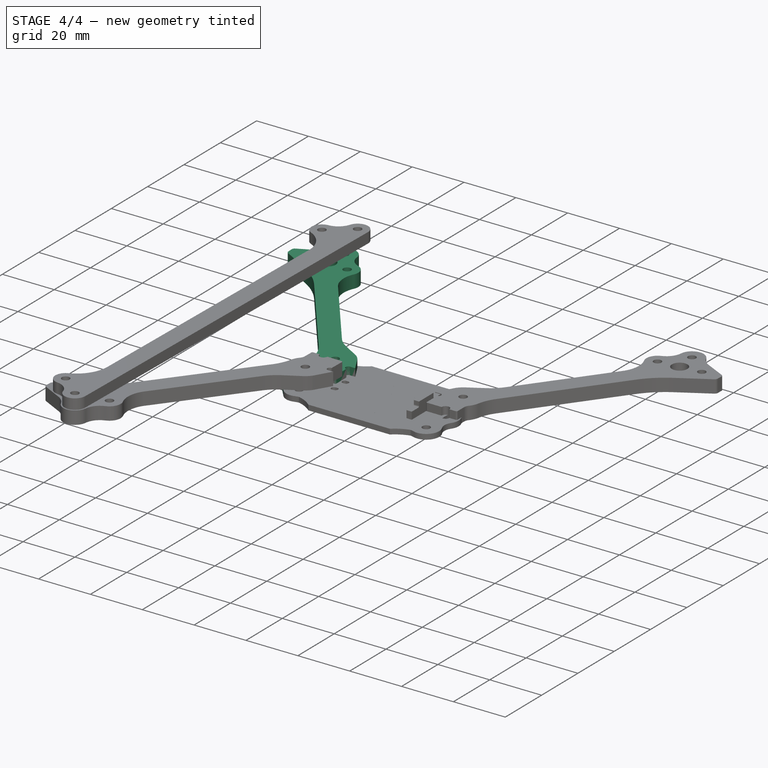
[diagram: stage 4 of 4 — iso view after this stage's code; geometry added in this stage tinted green]
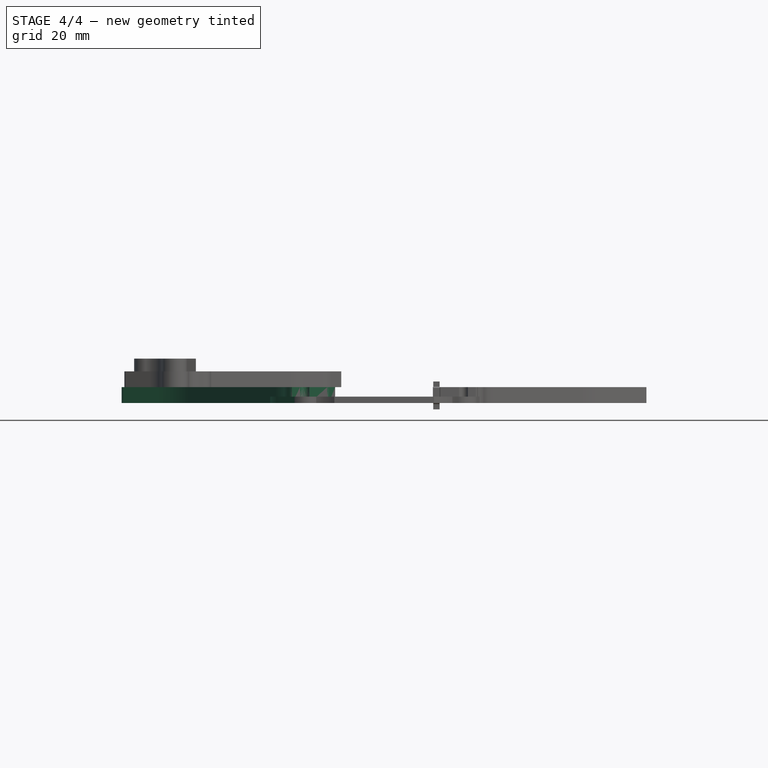
[diagram: stage 4 of 4 — front view after this stage's code; geometry added in this stage tinted green]
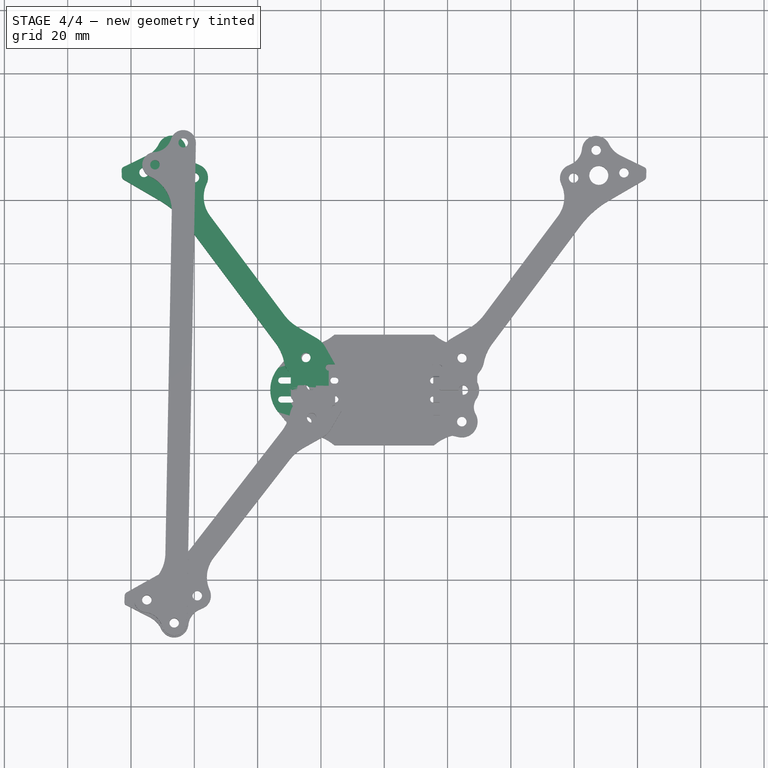
[diagram: stage 4 of 4 — top view after this stage's code; geometry added in this stage tinted green]
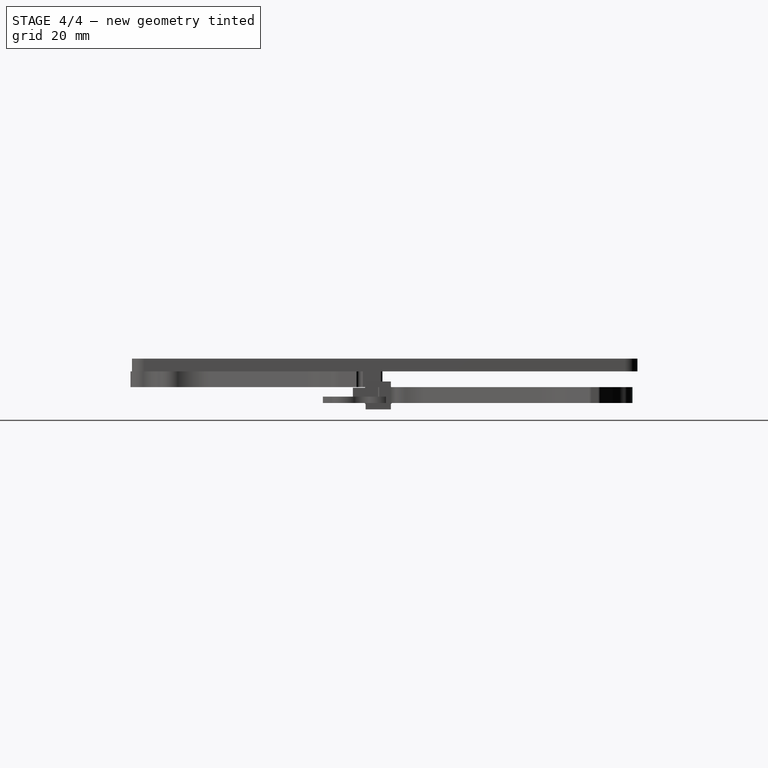
[diagram: stage 4 of 4 — right view after this stage's code; geometry added in this stage tinted green]
FEATURE [Sketcher::SketchObject] Sketch002  label="middle"
  FullyConstrained = true
  MapMode = 5
  Support = -> [XY_Plane002]
  expr: Constraints[0] = <<params>>.stands_spacing / 2
  expr: Constraints[111] = <<params>>.drill_bit_dia / 2
  expr: Constraints[155] = <<params>>.drill_bit_dia / 2
  expr: Constraints[17] = <<params>>.stack_screw_dia / 2
  expr: Constraints[1] = <<params>>.stands_length / 2
  expr: Constraints[21] = <<params>>.carbon_insert_dia / 2
  expr: Constraints[27] = <<params>>.carbon_insert_dia / 2
  expr: Constraints[36] = <<params>>.screw_dia + 2mm
  expr: Constraints[37] = <<params>>.plate_bottom_width / 2
  expr: Constraints[75] = <<params>>.screw_dia + 2mm
  expr: Constraints[76] = <<params>>.screw_dia + 1.5mm
  sketch-geometry (67):
    g0: Circle CenterX=-25 CenterY=-1e-15 CenterZ=0 NormalX=0 NormalY=0 NormalZ=1 AngleXU=0 Radius=2.25
    g1: Circle CenterX=-24.5 CenterY=-10 CenterZ=0 NormalX=0 NormalY=0 NormalZ=1 AngleXU=0 Radius=2.25
    g2: LineSegment StartX=-10 StartY=-10 StartZ=0 EndX=-10 EndY=10 EndZ=0
    g3: LineSegment StartX=-10 StartY=10 StartZ=0 EndX=10 EndY=10 EndZ=0
    g4: LineSegment StartX=10 StartY=10 StartZ=0 EndX=10 EndY=-10 EndZ=0
    g5: LineSegment StartX=10 StartY=-10 StartZ=0 EndX=-10 EndY=-10 EndZ=0
    g6: GeomPoint X=0 Y=0 Z=0
    g7: Circle CenterX=10 CenterY=-10 CenterZ=0 NormalX=0 NormalY=0 NormalZ=1 AngleXU=0 Radius=1.5
    g8: Circle CenterX=-10 CenterY=10 CenterZ=0 NormalX=0 NormalY=0 NormalZ=1 AngleXU=0 Radius=1.5
    g9: Circle CenterX=10 CenterY=10 CenterZ=0 NormalX=0 NormalY=0 NormalZ=1 AngleXU=0 Radius=1.5
    g10: Circle CenterX=-24.5 CenterY=10 CenterZ=0 NormalX=0 NormalY=0 NormalZ=1 AngleXU=0 Radius=2.25
    g11: Circle CenterX=24.5 CenterY=-10 CenterZ=0 NormalX=0 NormalY=0 NormalZ=1 AngleXU=0 Radius=2.25
    g12: Circle CenterX=24.5 CenterY=10 CenterZ=0 NormalX=0 NormalY=0 NormalZ=1 AngleXU=0 Radius=2.25
    g13: Circle CenterX=25 CenterY=-1e-15 CenterZ=0 NormalX=0 NormalY=0 NormalZ=1 AngleXU=0 Radius=2.25
    g14: ArcOfCircle CenterX=-24.5 CenterY=-10 CenterZ=0 NormalX=0 NormalY=0 NormalZ=1 AngleXU=0 Radius=5 StartAngle=3.83412 EndAngle=4.97808
    g15: ArcOfCircle CenterX=-17.0167 CenterY=-37.5 CenterZ=0 NormalX=0 NormalY=0 NormalZ=1 AngleXU=0 Radius=23.5 StartAngle=1.5708 EndAngle=1.83648
    g16: ArcOfCircle CenterX=-25 CenterY=-1e-15 CenterZ=0 NormalX=0 NormalY=0 NormalZ=1 AngleXU=0 Radius=11 StartAngle=3.14159 EndAngle=3.83412
    g17: LineSegment StartX=-33.466 StartY=-7.0233 StartZ=0 EndX=-28.3482 EndY=-13.1924 EndZ=0
    g18: LineSegment StartX=-17.0167 StartY=-14 StartZ=0 EndX=0 EndY=-14 EndZ=0
    g19: LineSegment StartX=-33.466 StartY=7.0233 StartZ=0 EndX=-28.3482 EndY=13.1924 EndZ=0
    g20: ArcOfCircle CenterX=-24.5 CenterY=10 CenterZ=0 NormalX=0 NormalY=0 NormalZ=1 AngleXU=0 Radius=5 StartAngle=1.30511 EndAngle=2.44907
    g21: ArcOfCircle CenterX=-17.0167 CenterY=37.5 CenterZ=0 NormalX=0 NormalY=0 NormalZ=1 AngleXU=0 Radius=23.5 StartAngle=4.4467 EndAngle=4.71239
    g22: LineSegment StartX=-17.0167 StartY=14 StartZ=0 EndX=0 EndY=14 EndZ=0
    g23: LineSegment StartX=17.0167 StartY=-14 StartZ=0 EndX=0 EndY=-14 EndZ=0
    g24: ArcOfCircle CenterX=17.0167 CenterY=-37.5 CenterZ=0 NormalX=0 NormalY=0 NormalZ=1 AngleXU=0 Radius=23.5 StartAngle=1.30511 EndAngle=1.5708
    g25: ArcOfCircle CenterX=17.0167 CenterY=37.5 CenterZ=0 NormalX=0 NormalY=0 NormalZ=1 AngleXU=0 Radius=23.5 StartAngle=4.71239 EndAngle=4.97808
    g26: LineSegment StartX=17.0167 StartY=14 StartZ=0 EndX=0 EndY=14 EndZ=0
    g27: ArcOfCircle CenterX=-25 CenterY=-1.9e-15 CenterZ=0 NormalX=0 NormalY=0 NormalZ=1 AngleXU=0 Radius=11 StartAngle=2.44907 EndAngle=3.14159
    g28: Circle CenterX=-10 CenterY=-10 CenterZ=0 NormalX=0 NormalY=0 NormalZ=1 AngleXU=0 Radius=1.5
    g29: ArcOfCircle CenterX=24.5 CenterY=-10 CenterZ=0 NormalX=0 NormalY=0 NormalZ=1 AngleXU=0 Radius=5 StartAngle=4.4467 EndAngle=6.78826
    g30: ArcOfCircle CenterX=25 CenterY=-1e-15 CenterZ=0 NormalX=0 NormalY=0 NormalZ=1 AngleXU=0 Radius=5 StartAngle=5.67819 EndAngle=6.88818
    g31: ArcOfCircle CenterX=24.5 CenterY=10 CenterZ=0 NormalX=0 NormalY=0 NormalZ=1 AngleXU=0 Radius=5 StartAngle=5.77811 EndAngle=8.11967
    g32: ArcOfCircle CenterX=32.8138 CenterY=5.40319 CenterZ=0 NormalX=0 NormalY=0 NormalZ=1 AngleXU=0 Radius=4.5 StartAngle=2.63652 EndAngle=3.74659
    g33: ArcOfCircle CenterX=32.8138 CenterY=-5.40319 CenterZ=0 NormalX=0 NormalY=0 NormalZ=1 AngleXU=0 Radius=4.5 StartAngle=2.5366 EndAngle=3.64667
    g34: ArcOfCircle CenterX=-29.5 CenterY=-3 CenterZ=0 NormalX=0 NormalY=0 NormalZ=1 AngleXU=0 Radius=1 StartAngle=4.71239 EndAngle=7.85398
    g35: ArcOfCircle CenterX=-32.5 CenterY=-3 CenterZ=0 NormalX=0 NormalY=0 NormalZ=1 AngleXU=0 Radius=1 StartAngle=1.5708 EndAngle=4.71239
    g36: LineSegment StartX=-29.5 StartY=-2 StartZ=0 EndX=-32.5 EndY=-2 EndZ=0
    g37: LineSegment StartX=-32.5 StartY=-4 StartZ=0 EndX=-29.5 EndY=-4 EndZ=0
    g38: ArcOfCircle CenterX=-32.5 CenterY=3 CenterZ=0 NormalX=0 NormalY=0 NormalZ=1 AngleXU=0 Radius=1 StartAngle=1.5708 EndAngle=4.71239
    g39: LineSegment StartX=-29.5 StartY=2 StartZ=0 EndX=-32.5 EndY=2 EndZ=0
    g40: LineSegment StartX=-32.5 StartY=4 StartZ=0 EndX=-29.5 EndY=4 EndZ=0
    g41: ArcOfCircle CenterX=-29.5 CenterY=3 CenterZ=0 NormalX=0 NormalY=0 NormalZ=1 AngleXU=0 Radius=1 StartAngle=4.71239 EndAngle=7.85398
    g42: LineSegment StartX=-17.5 StartY=1.95 StartZ=0 EndX=-17.5 EndY=-1.95 EndZ=0
    g43: LineSegment StartX=-15.5 StartY=-1.95 StartZ=0 EndX=-15.5 EndY=1.95 EndZ=0
    g44: ArcOfCircle CenterX=-17.5 CenterY=-2.95 CenterZ=0 NormalX=0 NormalY=0 NormalZ=1 AngleXU=0 Radius=1 StartAngle=1.5708 EndAngle=4.71239
    g45: ArcOfCircle CenterX=-15.5 CenterY=-2.95 CenterZ=0 NormalX=0 NormalY=0 NormalZ=1 AngleXU=0 Radius=1 StartAngle=4.71239 EndAngle=7.85398
    g46: LineSegment StartX=-17.5 StartY=-3.95 StartZ=0 EndX=-15.5 EndY=-3.95 EndZ=0
    g47: ArcOfCircle CenterX=-17.5 CenterY=2.95 CenterZ=0 NormalX=0 NormalY=0 NormalZ=1 AngleXU=0 Radius=1 StartAngle=1.5708 EndAngle=4.71239
    g48: ArcOfCircle CenterX=-15.5 CenterY=2.95 CenterZ=0 NormalX=0 NormalY=0 NormalZ=1 AngleXU=0 Radius=1 StartAngle=4.71239 EndAngle=7.85398
    g49: LineSegment StartX=-15.5 StartY=3.95 StartZ=0 EndX=-17.5 EndY=3.95 EndZ=0
    g50: LineSegment StartX=17.5 StartY=1.95 StartZ=0 EndX=17.5 EndY=-1.95 EndZ=0
    g51: LineSegment StartX=15.5 StartY=-1.95 StartZ=0 EndX=15.5 EndY=1.95 EndZ=0
    g52: ArcOfCircle CenterX=17.5 CenterY=-2.95 CenterZ=0 NormalX=0 NormalY=0 NormalZ=1 AngleXU=0 Radius=1 StartAngle=4.71239 EndAngle=7.85398
    g53: ArcOfCircle CenterX=15.5 CenterY=-2.95 CenterZ=0 NormalX=0 NormalY=0 NormalZ=1 AngleXU=0 Radius=1 StartAngle=1.5708 EndAngle=4.71239
    g54: LineSegment StartX=17.5 StartY=-3.95 StartZ=0 EndX=15.5 EndY=-3.95 EndZ=0
    g55: ArcOfCircle CenterX=17.5 CenterY=2.95 CenterZ=0 NormalX=0 NormalY=0 NormalZ=1 AngleXU=0 Radius=1 StartAngle=4.71239 EndAngle=7.85398
    g56: ArcOfCircle CenterX=15.5 CenterY=2.95 CenterZ=0 NormalX=0 NormalY=0 NormalZ=1 AngleXU=0 Radius=1 StartAngle=1.5708 EndAngle=4.71239
    g57: LineSegment StartX=15.5 StartY=3.95 StartZ=0 EndX=17.5 EndY=3.95 EndZ=0
    g58: GeomPoint X=0 Y=0 Z=0
    g59: LineSegment StartX=6 StartY=4.5 StartZ=0 EndX=6 EndY=-4.5 EndZ=0
    g60: LineSegment StartX=5 StartY=-5.5 StartZ=0 EndX=-5 EndY=-5.5 EndZ=0
    g61: LineSegment StartX=-6 StartY=-4.5 StartZ=0 EndX=-6 EndY=4.5 EndZ=0
    g62: LineSegment StartX=-5 StartY=5.5 StartZ=0 EndX=5 EndY=5.5 EndZ=0
    g63: ArcOfCircle CenterX=-5 CenterY=-4.5 CenterZ=0 NormalX=0 NormalY=0 NormalZ=1 AngleXU=0 Radius=1 StartAngle=3.14159 EndAngle=4.71239
    g64: ArcOfCircle CenterX=5 CenterY=-4.5 CenterZ=0 NormalX=0 NormalY=0 NormalZ=1 AngleXU=0 Radius=1 StartAngle=4.71239 EndAngle=6.28319
    g65: ArcOfCircle CenterX=5 CenterY=4.5 CenterZ=0 NormalX=0 NormalY=0 NormalZ=1 AngleXU=0 Radius=1 StartAngle=3e-16 EndAngle=1.5708
    g66: ArcOfCircle CenterX=-5 CenterY=4.5 CenterZ=0 NormalX=0 NormalY=0 NormalZ=1 AngleXU=0 Radius=1 StartAngle=1.5708 EndAngle=3.14159
  constraints (158):
    c: Distance(g1,g-1) = 10
    c: Distance(g1,g-2) = 24.5
    c: Coincident(g2,g3)
    c: Coincident(g3,g4)
    c: Coincident(g4,g5)
    c: Coincident(g5,g2)
    c: Horizontal(g3)
    c: Horizontal(g5)
    c: Vertical(g2)
    c: Vertical(g4)
    c: Symmetric(g3,g2,g6)
    c: Coincident(g6,g-1)
    c: Equal(g3,g2)
    c: DistanceX(g5,g5) = 20
    c: Coincident(g7,g4)
    c: Coincident(g8,g2)
    c: Coincident(g9,g3)
    c: Radius(g9) = 1.5
    c: Equal(g12,g10)
    c: Equal(g10,g1)
    c: Equal(g1,g11)
    c: Radius(g1) = 2.25
    c: Symmetric(g10,g1,g-1)
    c: Symmetric(g1,g11,g-2)
    c: Symmetric(g12,g10,g-2)
    c: Equal(g0,g13)
    c: Symmetric(g13,g0,g-2)
    c: Radius(g0) = 2.25
    c: Coincident(g14,g1)
    c: Coincident(g16,g0)
    c: PointOnObject(g18,g-2)
    c: Horizontal(g18)
    c: Tangent(g18,g15) = 1.5708
    c: Tangent(g15,g14) = 1.5708
    c: Tangent(g17,g14) = -1.5708
    c: Tangent(g17,g16) = -1.5708
    c: Radius(g14) = 5
    c: Distance(g18,g-1) = 14
    c: Radius(g16) = 11
    c: Radius(g15) = 23.5
    c: Horizontal(g22)
    c: Tangent(g22,g21) = -1.5708
    c: Tangent(g21,g20) = 1.5708
    c: Tangent(g19,g20) = 1.5708
    c: Symmetric(g14,g19,g-1)
    c: Symmetric(g20,g14,g-1)
    c: Symmetric(g22,g18,g-1)
    c: Tangent(g23,g24) = -1.5708
    c: Horizontal(g26)
    c: Tangent(g26,g25) = 1.5708
    c: Coincident(g23,g18)
    c: Coincident(g26,g22)
    c: Symmetric(g15,g23,g-2)
    c: Symmetric(g14,g24,g-2)
    c: PointOnObject(g16,g-1)
    c: Vertical(g21,g15)
    c: Tangent(g27,g19) = 1.5708
    c: Coincident(g27,g16)
    c: Symmetric(g16,g19,g-1)
    c: Symmetric(g25,g20,g-2)
    c: Coincident(g28,g2)
    c: Equal(g8,g28)
    c: Equal(g28,g7)
    c: Equal(g7,g9)
    c: Coincident(g29,g11)
    c: Coincident(g30,g13)
    c: Coincident(g31,g12)
    c: Tangent(g33,g29) = 1.5708
    c: Tangent(g33,g30) = 1.5708
    c: Tangent(g29,g24) = 1.5708
    c: Tangent(g32,g30) = 1.5708
    c: Tangent(g32,g31) = 1.5708
    c: Tangent(g31,g25) = 1.5708
    c: Symmetric(g31,g29,g-1)
    c: Symmetric(g30,g30,g-1)
    c: Radius(g30) = 5
    c: Radius(g33) = 4.5
    c: Tangent(g34,g36) = -1.5708
    c: Tangent(g36,g35) = -1.5708
    c: Tangent(g35,g37) = -1.5708
    c: Tangent(g37,g34) = -1.5708
    c: Equal(g34,g35)
    c: Horizontal(g36)
    c: Distance(g34,g-1) = 3
    c: Distance(g35,g34) = 3
    c: Radius(g34) = 1
    c: DistanceX(g34,g0) = 4.5
    c: Tangent(g41,g39) = 1.5708
    c: Tangent(g39,g38) = 1.5708
    c: Tangent(g38,g40) = 1.5708
    c: Tangent(g40,g41) = 1.5708
    c: Equal(g41,g38)
    c: Horizontal(g39)
    c: Vertical(g38,g35)
    c: Equal(g38,g35)
    c: Symmetric(g41,g34,g-1)
    c: Vertical(g43)
    c: Tangent(g44,g46) = -1.5708
    c: Tangent(g46,g45) = -1.5708
    c: Horizontal(g46)
    c: Tangent(g48,g49) = -1.5708
    c: Tangent(g49,g47) = -1.5708
    c: Vertical(g48,g43)
    c: Vertical(g43,g45)
    c: Vertical(g44,g42)
    c: Vertical(g42,g47)
    c: Equal(g49,g46)
    c: Coincident(g43,g48)
    c: Coincident(g42,g47)
    c: Coincident(g42,g44)
    c: Coincident(g43,g45)
    c: Radius(g44) = 1
    c: Distance(g46) = 2
    c: Equal(g44,g45)
    c: Equal(g45,g48)
    c: Equal(g48,g47)
    c: Symmetric(g42,g42,g-1)
    c: DistanceY(g45,g48) = 7.9
    c: DistanceX(g0,g42) = 7.5
    c: Tangent(g52,g54) = 1.5708
    c: Tangent(g54,g53) = 1.5708
    c: Horizontal(g54)
    c: Tangent(g56,g57) = 1.5708
    c: Tangent(g57,g55) = 1.5708
    c: Equal(g57,g54)
    c: Coincident(g51,g56)
    c: Coincident(g50,g55)
    c: Coincident(g50,g52)
    c: Coincident(g51,g53)
    c: Equal(g56,g55)
    c: Equal(g55,g52)
    c: Equal(g53,g44)
    c: Symmetric(g51,g43,g-2)
    c: Symmetric(g50,g42,g-2)
    c: Vertical(g50)
    c: Perpendicular(g56,g51)
    c: Perpendicular(g55,g50)
    c: Equal(g50,g51)
    c: Perpendicular(g53,g51)
    c: Symmetric(g51,g43,g-2)
    c: Coincident(g58,g6)
    c: Symmetric(g59,g59,g-1)
    c: Symmetric(g59,g61,g-2)
    c: Symmetric(g60,g60,g-2)
    c: Symmetric(g60,g62,g-1)
    c: DistanceX(g61,g59) = 12
    c: DistanceY(g60,g62) = 11
    c: Tangent(g63,g61) = 1.5708
    c: Tangent(g63,g60) = 1.5708
    c: Tangent(g64,g60) = 1.5708
    c: Tangent(g64,g59) = 1.5708
    c: Tangent(g65,g59) = 1.5708
    c: Tangent(g65,g62) = 1.5708
    c: Tangent(g66,g61) = 1.5708
    c: Tangent(g66,g62) = 1.5708
    c: Radius(g64) = 1
    c: Equal(g66,g64)
    c: DistanceX(g0,g1) = 0.5
FEATURE [PartDesign::Pad] Pad002  label="middle_pad"
  Direction = (0,0,1)
  Length = 2
  Length2 = 10
  Profile = -> Sketch002
  ReferenceAxis = -> Sketch002 [N_Axis]
  Type = 0
FEATURE [Sketcher::SketchObject] Sketch004  label="top001"
  FullyConstrained = true
  MapMode = 5
  expr: Constraints[0] = <<params>>.stands_spacing / 2
  expr: Constraints[1] = <<params>>.stands_length / 2
  expr: Constraints[29] = <<params>>.plate_top_width
  expr: Constraints[3] = <<params>>.screw_dia / 2
  expr: Constraints[8] = <<params>>.screw_dia + 1mm
  sketch-geometry (58):
    g0: Circle CenterX=-24.5 CenterY=-10 CenterZ=0 NormalX=0 NormalY=0 NormalZ=1 AngleXU=0 Radius=1.5
    g1: GeomPoint X=0 Y=0 Z=0
    g2: Circle CenterX=-24.5 CenterY=10 CenterZ=0 NormalX=0 NormalY=0 NormalZ=1 AngleXU=0 Radius=1.5
    g3: Circle CenterX=24.5 CenterY=-10 CenterZ=0 NormalX=0 NormalY=0 NormalZ=1 AngleXU=0 Radius=1.5
    g4: Circle CenterX=24.5 CenterY=10 CenterZ=0 NormalX=0 NormalY=0 NormalZ=1 AngleXU=0 Radius=1.5
    g5: ArcOfCircle CenterX=-24.5 CenterY=-10 CenterZ=0 NormalX=0 NormalY=0 NormalZ=1 AngleXU=0 Radius=4 StartAngle=1.5708 EndAngle=4.68461
    g6: ArcOfCircle CenterX=-24.5 CenterY=10 CenterZ=0 NormalX=0 NormalY=0 NormalZ=1 AngleXU=0 Radius=4 StartAngle=1.59858 EndAngle=4.71239
    g7: LineSegment StartX=-20 StartY=-4.5 StartZ=0 EndX=-20 EndY=4.5 EndZ=0
    g8: ArcOfCircle CenterX=24.5 CenterY=10 CenterZ=0 NormalX=0 NormalY=0 NormalZ=1 AngleXU=0 Radius=4 StartAngle=5.55346 EndAngle=7.8262
    g9: ArcOfCircle CenterX=24.5 CenterY=-10 CenterZ=0 NormalX=0 NormalY=0 NormalZ=1 AngleXU=0 Radius=4 StartAngle=4.74017 EndAngle=7.01291
    g10: ArcOfCircle CenterX=-25 CenterY=-27.9931 CenterZ=0 NormalX=0 NormalY=0 NormalZ=1 AngleXU=0 Radius=14 StartAngle=0.847312 EndAngle=1.54301
    g11: ArcOfCircle CenterX=-25 CenterY=27.9931 CenterZ=0 NormalX=0 NormalY=0 NormalZ=1 AngleXU=0 Radius=14 StartAngle=4.74017 EndAngle=5.43587
    g12: ArcOfCircle CenterX=25 CenterY=27.9931 CenterZ=0 NormalX=0 NormalY=0 NormalZ=1 AngleXU=0 Radius=14 StartAngle=3.9889 EndAngle=4.68461
    g13: ArcOfCircle CenterX=25 CenterY=-27.9931 CenterZ=0 NormalX=0 NormalY=0 NormalZ=1 AngleXU=0 Radius=14 StartAngle=1.59858 EndAngle=2.29428
    g14: LineSegment StartX=-15.732 StartY=-17.5 StartZ=0 EndX=15.732 EndY=-17.5 EndZ=0
    g15: LineSegment StartX=-15.732 StartY=17.5 StartZ=0 EndX=15.732 EndY=17.5 EndZ=0
    g16: ArcOfCircle CenterX=35.6803 CenterY=1.13e-14 CenterZ=0 NormalX=0 NormalY=0 NormalZ=1 AngleXU=0 Radius=11 StartAngle=2.41186 EndAngle=3.87132
    g17: LineSegment StartX=-24.5 StartY=-6 StartZ=0 EndX=-21.5 EndY=-6 EndZ=0
    g18: LineSegment StartX=-24.5 StartY=6 StartZ=0 EndX=-21.5 EndY=6 EndZ=0
    g19: ArcOfCircle CenterX=-21.5 CenterY=4.5 CenterZ=0 NormalX=0 NormalY=0 NormalZ=1 AngleXU=0 Radius=1.5 StartAngle=0 EndAngle=1.5708
    g20: ArcOfCircle CenterX=-21.5 CenterY=-4.5 CenterZ=0 NormalX=0 NormalY=0 NormalZ=1 AngleXU=0 Radius=1.5 StartAngle=4.71239 EndAngle=6.28319
    g21: ArcOfCircle CenterX=-16 CenterY=-3 CenterZ=0 NormalX=0 NormalY=0 NormalZ=1 AngleXU=0 Radius=1 StartAngle=1.5708 EndAngle=4.71239
    g22: ArcOfCircle CenterX=-12 CenterY=-3 CenterZ=0 NormalX=0 NormalY=0 NormalZ=1 AngleXU=0 Radius=1 StartAngle=4.71239 EndAngle=7.85398
    g23: LineSegment StartX=-16 StartY=-4 StartZ=0 EndX=-12 EndY=-4 EndZ=0
    g24: LineSegment StartX=-12 StartY=-2 StartZ=0 EndX=-16 EndY=-2 EndZ=0
    g25: ArcOfCircle CenterX=-16 CenterY=3 CenterZ=0 NormalX=0 NormalY=0 NormalZ=1 AngleXU=0 Radius=1 StartAngle=1.5708 EndAngle=4.71239
    g26: ArcOfCircle CenterX=-12 CenterY=3 CenterZ=0 NormalX=0 NormalY=0 NormalZ=1 AngleXU=0 Radius=1 StartAngle=4.71239 EndAngle=7.85398
    g27: LineSegment StartX=-16 StartY=4 StartZ=0 EndX=-12 EndY=4 EndZ=0
    g28: LineSegment StartX=-12 StartY=2 StartZ=0 EndX=-16 EndY=2 EndZ=0
    g29: LineSegment StartX=-1.27899 StartY=-3.96029 StartZ=0 EndX=17.9269 EndY=-9.54009 EndZ=0
    g30: LineSegment StartX=19.1358 StartY=-8.21215 StartZ=0 EndX=16.93 EndY=-2.63235 EndZ=0
    g31: LineSegment StartX=-1 StartY=-2 StartZ=0 EndX=16 EndY=-2 EndZ=0
    g32: ArcOfCircle CenterX=18.2059 CenterY=-8.57979 CenterZ=0 NormalX=0 NormalY=0 NormalZ=1 AngleXU=0 Radius=1 StartAngle=4.42965 EndAngle=6.65966
    g33: ArcOfCircle CenterX=-1 CenterY=-3 CenterZ=0 NormalX=0 NormalY=0 NormalZ=1 AngleXU=0 Radius=1 StartAngle=1.5708 EndAngle=4.42965
    g34: ArcOfCircle CenterX=16 CenterY=-3 CenterZ=0 NormalX=0 NormalY=0 NormalZ=1 AngleXU=0 Radius=1 StartAngle=0.376478 EndAngle=1.5708
    g35: LineSegment StartX=-1.27899 StartY=3.96029 StartZ=0 EndX=17.9269 EndY=9.54009 EndZ=0
    g36: LineSegment StartX=19.1358 StartY=8.21215 StartZ=0 EndX=16.93 EndY=2.63235 EndZ=0
    g37: LineSegment StartX=-1 StartY=2 StartZ=0 EndX=16 EndY=2 EndZ=0
    g38: ArcOfCircle CenterX=18.2059 CenterY=8.57979 CenterZ=0 NormalX=0 NormalY=0 NormalZ=1 AngleXU=0 Radius=1 StartAngle=5.90671 EndAngle=8.13672
    g39: ArcOfCircle CenterX=-1 CenterY=3 CenterZ=0 NormalX=0 NormalY=0 NormalZ=1 AngleXU=0 Radius=1 StartAngle=1.85354 EndAngle=4.71239
    g40: ArcOfCircle CenterX=16 CenterY=3 CenterZ=0 NormalX=0 NormalY=0 NormalZ=1 AngleXU=0 Radius=1 StartAngle=4.71239 EndAngle=5.90671
    g41: LineSegment StartX=-7.4537 StartY=-7.06921 StartZ=0 EndX=-16.3656 EndY=-10.5692 EndZ=0
    g42: ArcOfCircle CenterX=-16 CenterY=-11.5 CenterZ=0 NormalX=0 NormalY=0 NormalZ=1 AngleXU=0 Radius=1 StartAngle=1.94502 EndAngle=4.71239
    g43: LineSegment StartX=-16 StartY=-12.5 StartZ=0 EndX=4.959 EndY=-12.5 EndZ=0
    g44: ArcOfCircle CenterX=4.959 CenterY=-11.5 CenterZ=0 NormalX=0 NormalY=0 NormalZ=1 AngleXU=0 Radius=1 StartAngle=4.71239 EndAngle=7.57124
    g45: LineSegment StartX=5.23799 StartY=-10.5397 StartZ=0 EndX=-6.80916 EndY=-7.03971 EndZ=0
    g46: ArcOfCircle CenterX=-7.08815 CenterY=-8 CenterZ=0 NormalX=0 NormalY=0 NormalZ=1 AngleXU=0 Radius=1 StartAngle=1.28805 EndAngle=1.94502
    g47: LineSegment StartX=-7.4537 StartY=7.06921 StartZ=0 EndX=-16.3656 EndY=10.5692 EndZ=0
    g48: ArcOfCircle CenterX=-16 CenterY=11.5 CenterZ=0 NormalX=0 NormalY=0 NormalZ=1 AngleXU=0 Radius=1 StartAngle=1.5708 EndAngle=4.33816
    g49: LineSegment StartX=-16 StartY=12.5 StartZ=0 EndX=4.959 EndY=12.5 EndZ=0
    g50: ArcOfCircle CenterX=4.959 CenterY=11.5 CenterZ=0 NormalX=0 NormalY=0 NormalZ=1 AngleXU=0 Radius=1 StartAngle=4.99513 EndAngle=7.85398
    g51: LineSegment StartX=5.23799 StartY=10.5397 StartZ=0 EndX=-6.80916 EndY=7.03971 EndZ=0
    g52: ArcOfCircle CenterX=-7.08815 CenterY=8 CenterZ=0 NormalX=0 NormalY=0 NormalZ=1 AngleXU=0 Radius=1 StartAngle=4.33816 EndAngle=4.99513
    g53: LineSegment StartX=-10 StartY=10 StartZ=0 EndX=-10 EndY=-10 EndZ=0
    g54: LineSegment StartX=-10 StartY=-10 StartZ=0 EndX=10 EndY=-10 EndZ=0
    g55: LineSegment StartX=10 StartY=-10 StartZ=0 EndX=10 EndY=10 EndZ=0
    g56: LineSegment StartX=10 StartY=10 StartZ=0 EndX=-10 EndY=10 EndZ=0
    g57: GeomPoint X=0 Y=0 Z=0
  constraints (133):
    c: Distance(g0,g-1) = 10
    c: Distance(g0,g-2) = 24.5
    c: Coincident(g1,g-1)
    c: Radius(g0) = 1.5
    c: Symmetric(g2,g0,g-1)
    c: Symmetric(g0,g3,g-2)
    c: Symmetric(g4,g2,g-2)
    c: Coincident(g5,g0)
    c: Radius(g5) = 4
    c: Symmetric(g6,g5,g-1)
    c: Vertical(g7)
    c: Symmetric(g9,g5,g-2)
    c: Coincident(g8,g4)
    c: Coincident(g9,g3)
    c: Equal(g2,g4)
    c: Equal(g4,g3)
    c: Equal(g3,g0)
    c: Tangent(g11,g6) = 1.5708
    c: Tangent(g10,g5) = 1.5708
    c: Symmetric(g10,g11,g-1)
    c: Radius(g10) = 14
    c: Symmetric(g12,g11,g-2)
    c: Equal(g10,g11)
    c: Equal(g11,g12)
    c: Coincident(g14,g10)
    c: Coincident(g14,g13)
    c: Coincident(g15,g11)
    c: Coincident(g15,g12)
    c: Horizontal(g15)
    c: DistanceY(g10,g11) = 35
    c: Tangent(g12,g8) = 1.5708
    c: Tangent(g13,g9) = 1.5708
    c: Tangent(g16,g8) = 1.5708
    c: Tangent(g16,g9) = 1.5708
    c: Radius(g16) = 11
    c: Coincident(g6,g2)
    c: Symmetric(g13,g10,g-2)
    c: Horizontal(g17)
    c: Vertical(g18,g17)
    c: Tangent(g17,g5) = 1.5708
    c: Tangent(g18,g6) = -1.5708
    c: Tangent(g20,g17) = -1.5708
    c: Tangent(g19,g18) = 1.5708
    c: Tangent(g19,g7) = -1.5708
    c: Tangent(g20,g7) = -1.5708
    c: Radius(g20) = 1.5
    c: Tangent(g21,g23) = -1.5708
    c: Tangent(g23,g22) = -1.5708
    c: Tangent(g22,g24) = -1.5708
    c: Tangent(g24,g21) = -1.5708
    c: Equal(g21,g22)
    c: Horizontal(g23)
    c: Radius(g22) = 1
    c: Distance(g21,g22) = 4
    c: Distance(g22,g-1) = 3
    c: Distance(g21,g7) = 4
    c: Tangent(g25,g27) = 1.5708
    c: Tangent(g27,g26) = 1.5708
    c: Tangent(g26,g28) = 1.5708
    c: Tangent(g28,g25) = 1.5708
    c: Equal(g25,g26)
    c: Horizontal(g27)
    c: Equal(g28,g24)
    c: Equal(g26,g22)
    c: Symmetric(g22,g26,g-1)
    c: Horizontal(g31)
    c: Equal(g34,g33)
    c: Equal(g33,g32)
    c: Radius(g34) = 1
    c: Horizontal(g33,g22)
    c: Tangent(g29,g33) = -1.5708
    c: Tangent(g31,g33) = 1.5708
    c: Tangent(g30,g34) = -1.5708
    c: Tangent(g31,g34) = 1.5708
    c: Tangent(g30,g32) = -1.5708
    c: Tangent(g29,g32) = -1.5708
    c: Horizontal(g37)
    c: Equal(g39,g38)
    c: Tangent(g35,g39) = 1.5708
    c: Tangent(g37,g39) = -1.5708
    c: Tangent(g36,g40) = 1.5708
    c: Tangent(g37,g40) = -1.5708
    c: Tangent(g36,g38) = 1.5708
    c: Tangent(g35,g38) = 1.5708
    c: Symmetric(g32,g38,g-1)
    c: Symmetric(g40,g34,g-1)
    c: Symmetric(g33,g39,g-1)
    c: Distance(g32,g34) = 6
    c: Distance(g32,g33) = 20
    c: Distance(g33,g34) = 17
    c: DistanceX(g22,g33) = 11
    c: Tangent(g41,g42) = -1.5708
    c: Horizontal(g43)
    c: Tangent(g43,g44) = -1.5708
    c: Tangent(g45,g46) = -1.5708
    c: Equal(g42,g46)
    c: Equal(g46,g44)
    c: Radius(g44) = 1
    c: Distance(g43,g14) = 5
    c: Parallel(g45,g29)
    c: Distance(g44,g29) = 4.5
    c: Vertical(g42,g21)
    c: Tangent(g42,g43) = -1.5708
    c: Tangent(g46,g41) = -1.5708
    c: Tangent(g44,g45) = -1.5708
    c: Distance(g46,g43) = 4.5
    c: Tangent(g47,g48) = 1.5708
    c: Horizontal(g49)
    c: Tangent(g49,g50) = 1.5708
    c: Tangent(g51,g52) = 1.5708
    c: Equal(g52,g50)
    c: Tangent(g48,g49) = 1.5708
    c: Tangent(g52,g47) = 1.5708
    c: Tangent(g50,g51) = 1.5708
    c: Symmetric(g44,g50,g-1)
    c: Symmetric(g52,g46,g-1)
    c: Symmetric(g48,g42,g-1)
    c: Equal(g34,g40)
    c: Equal(g46,g52)
    c: DistanceX(g10,g0) = 0.5
    c: DistanceX(g0,g7) = 4.5
    c: Coincident(g53,g54)
    c: Coincident(g54,g55)
    c: Coincident(g55,g56)
    c: Coincident(g56,g53)
    c: Horizontal(g54)
    c: Horizontal(g56)
    c: Vertical(g53)
    c: Vertical(g55)
    c: Symmetric(g54,g53,g57)
    c: Coincident(g57,g1)
    c: Equal(g54,g55)
    c: DistanceY(g55,g55) = 20
FEATURE [PartDesign::Pad] Pad004
  Direction = (0,0,1)
  Length = 2
  Length2 = 10
  Profile = -> Sketch004
  ReferenceAxis = -> Sketch004 [N_Axis]
  Type = 0
FEATURE [Part::Mirroring] Part__Mirroring001  label="arm_pad (Mirror #2)"
  Base = (0,0,0)
  Normal = (0,1,0)
  Placement = pos=(-2.04817,0.909584,-5) rot=(0,0,-1;0.017453rad)
  Source = -> Pad
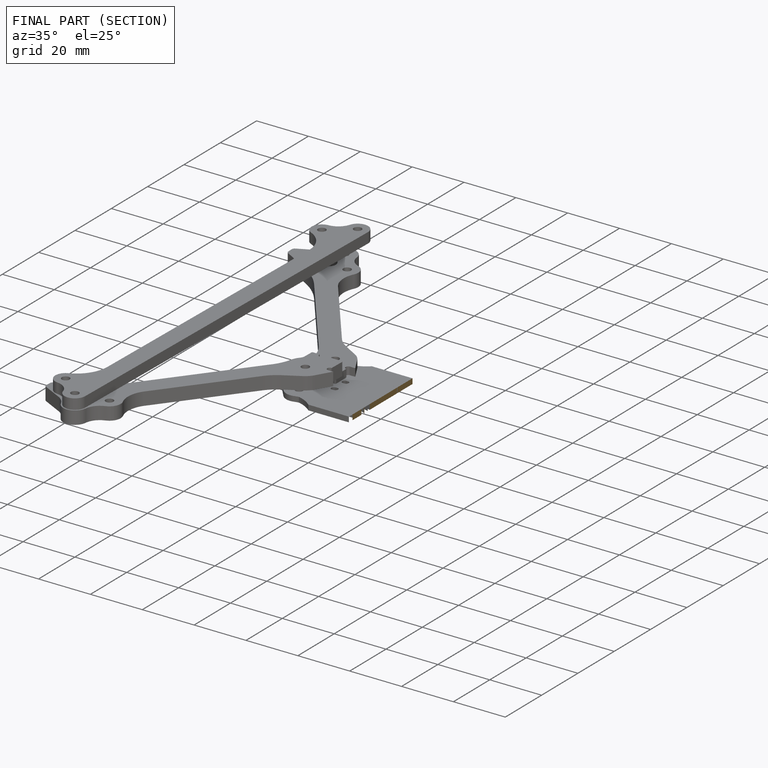
[diagram: finished part — half-section view (interior)]
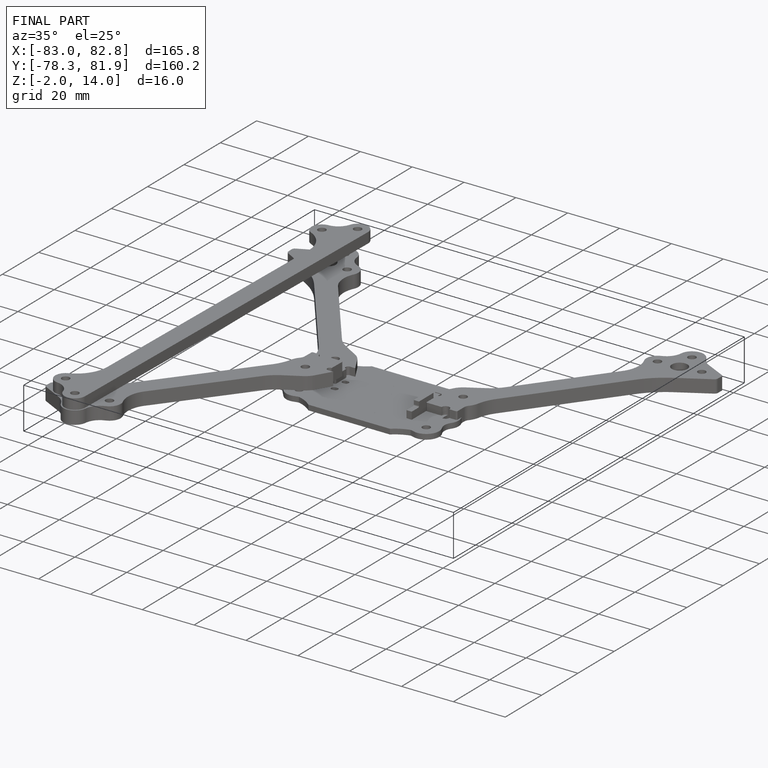
[diagram: finished part — iso view with bounding-box wireframe]
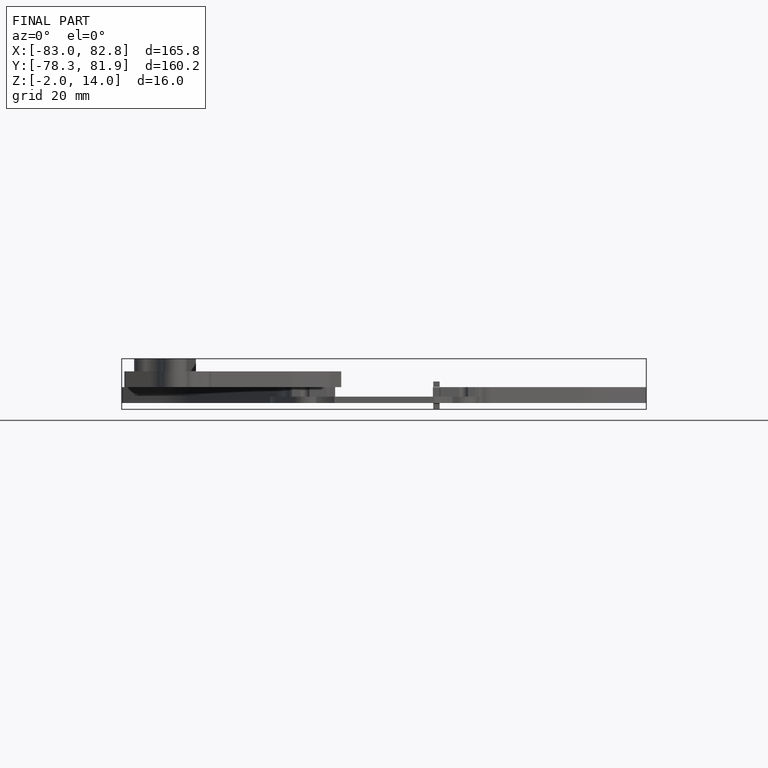
[diagram: finished part — front view with bounding-box wireframe]
